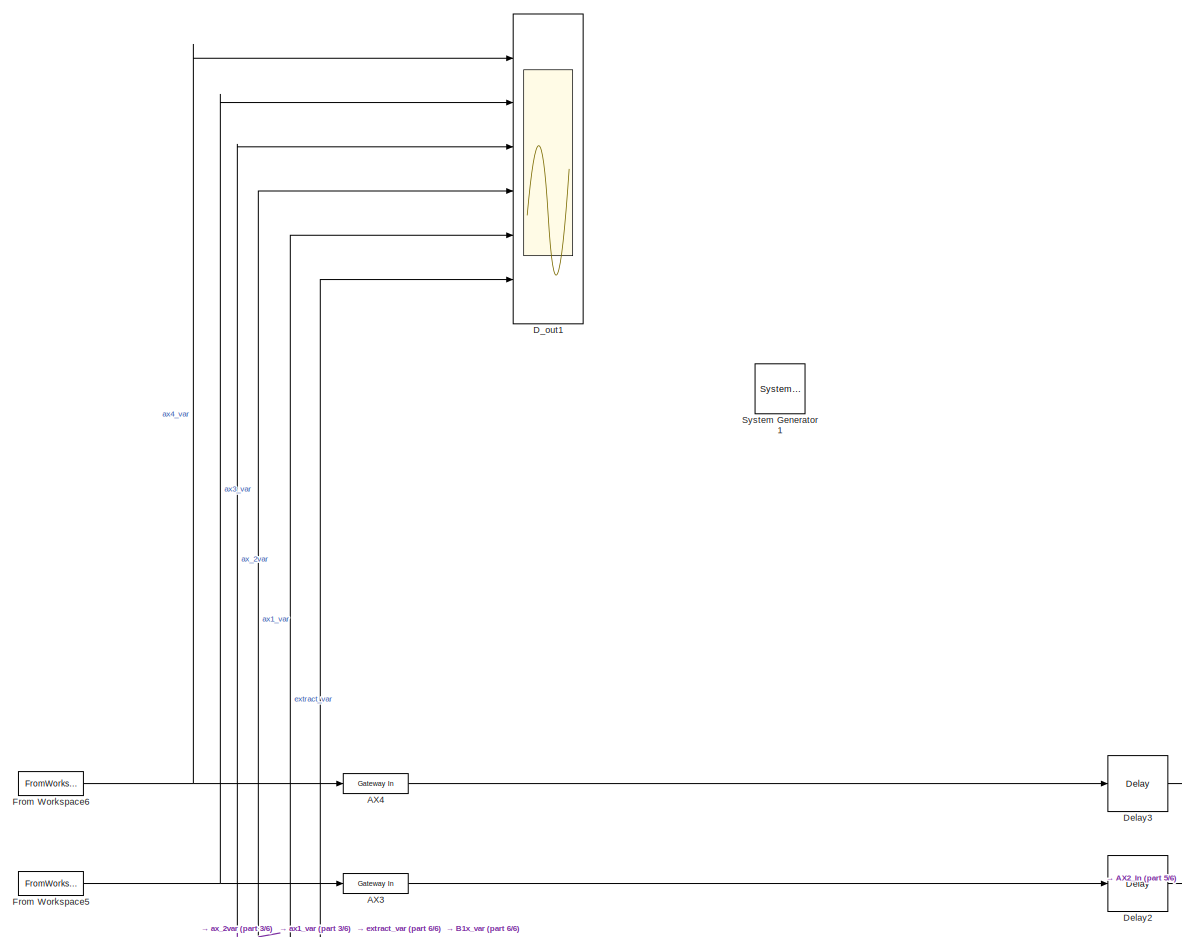
[diagram: root canvas - part 1/6, top left region]
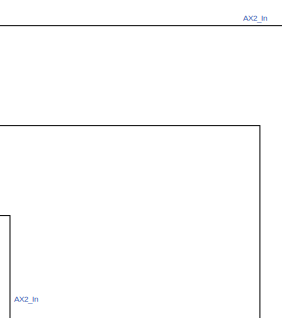
[diagram: root canvas - part 2/6, central region]
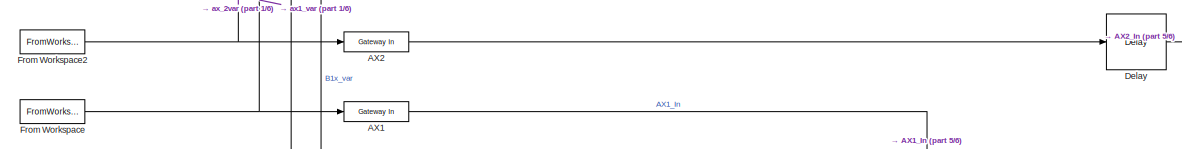
[diagram: root canvas - part 3/6, middle left region]
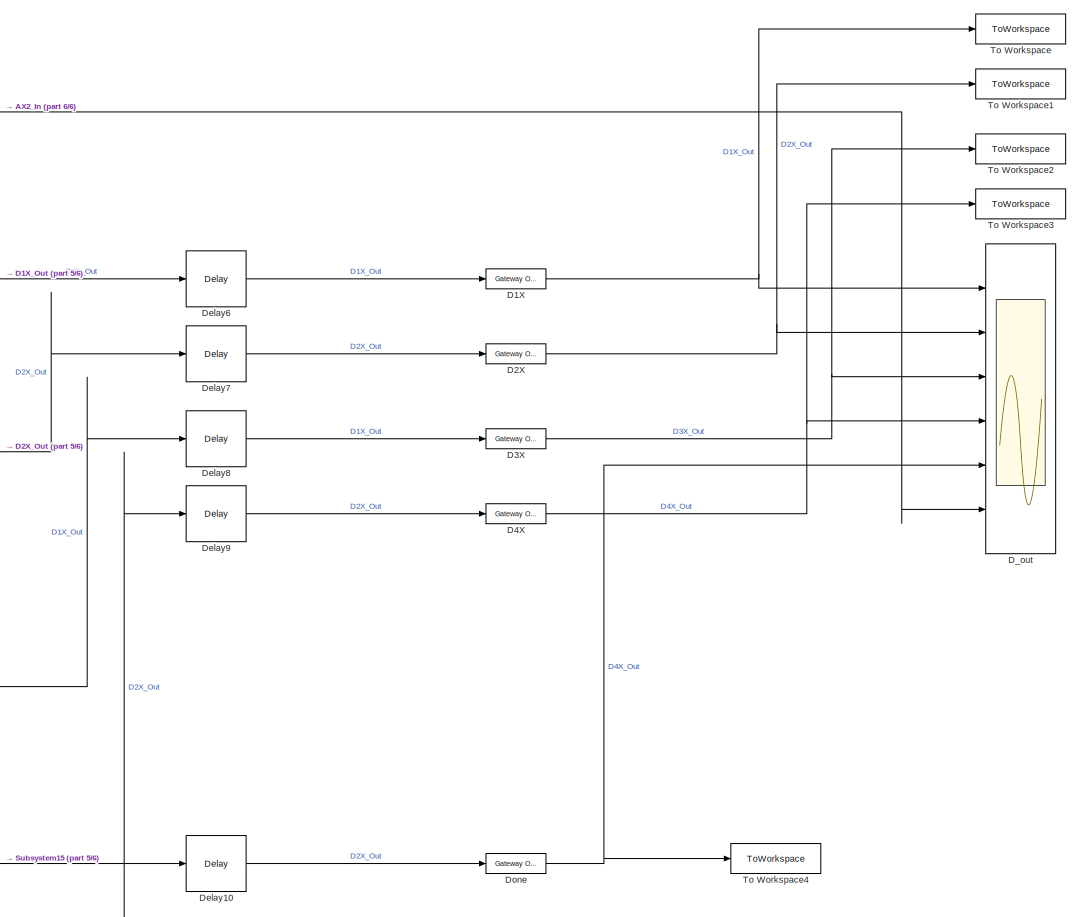
[diagram: root canvas - part 4/6, bottom right region]
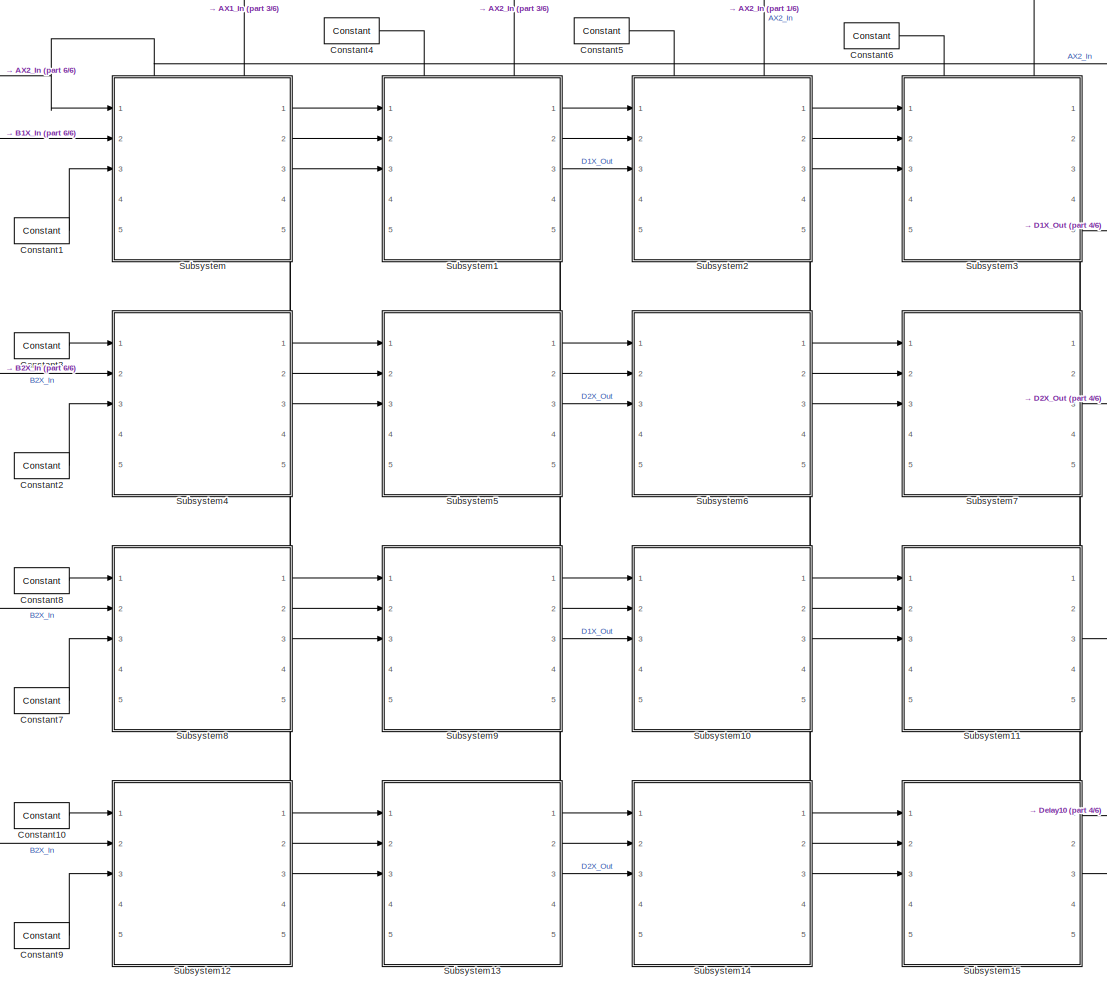
[diagram: root canvas - part 5/6, bottom center region]
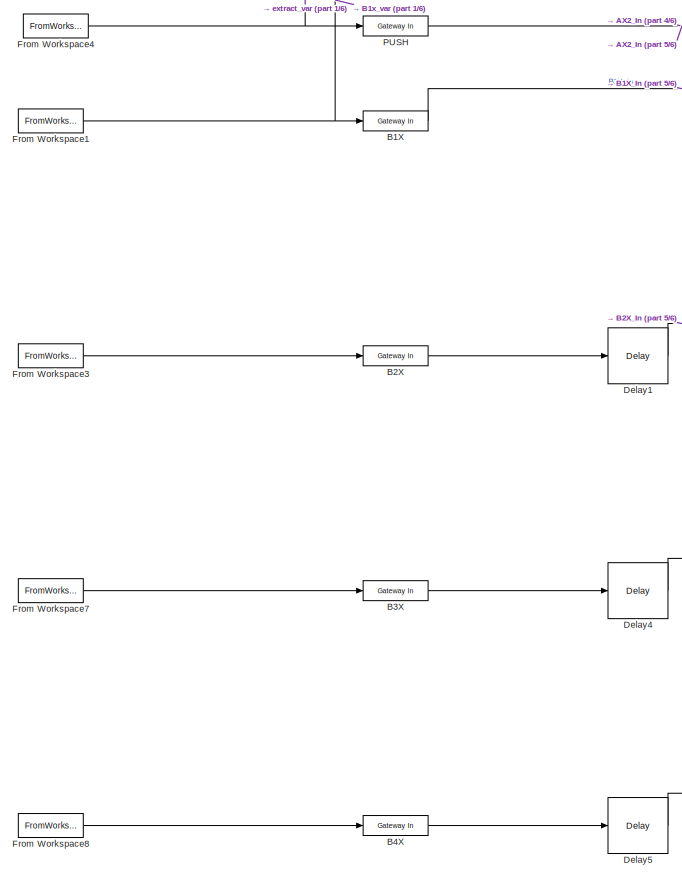
[diagram: root canvas - part 6/6, bottom left region]
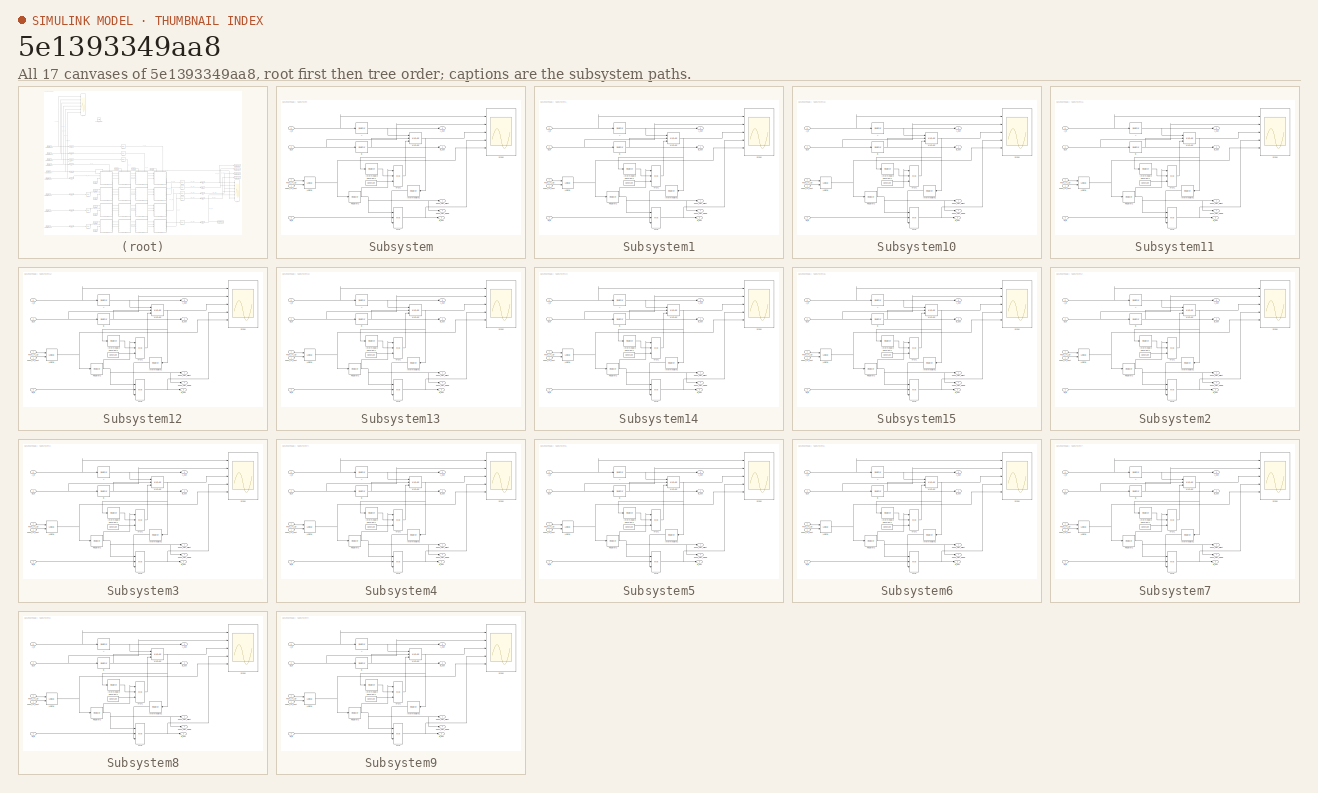
[diagram: thumbnail index - all 17 canvases of the model, root first then tree order]
MODEL slx_5e1393349aa8
KIND model
CONFIG AbsTol = auto
CONFIG EnableMultiTasking = off
CONFIG FixedStep = auto
CONFIG MaxStep = auto
CONFIG MinStep = auto
CONFIG RelTol = 1e-3
CONFIG SampleTimeConstraint = Unconstrained
CONFIG SolverName = VariableStepAuto
CONFIG StartTime = 0.0
CONFIG StopTime = 32
BLOCK [Reference]  System Generator1  REF=xbsIndex_r4/ System Generator
  AttributesFormatString = System\nGenerator
  Ports = []
  SourceBlock = xbsIndex_r4/ System Generator
  SourceType = Xilinx System Generator Block
  Tag = genX
  UserDataPersistent = on
BLOCK [Reference] AX1  REF=hdlBasic/Gateway In
  Ports = [1, 1]
  SourceBlock = hdlBasic/Gateway In
  SourceType = Gateway In Block
BLOCK [Reference] AX2  REF=hdlBasic/Gateway In
  Ports = [1, 1]
  SourceBlock = hdlBasic/Gateway In
  SourceType = Gateway In Block
BLOCK [Reference] AX3  REF=hdlBasic/Gateway In
  Ports = [1, 1]
  SourceBlock = hdlBasic/Gateway In
  SourceType = Gateway In Block
BLOCK [Reference] AX4  REF=hdlBasic/Gateway In
  Ports = [1, 1]
  SourceBlock = hdlBasic/Gateway In
  SourceType = Gateway In Block
BLOCK [Reference] B1X  REF=hdlBasic/Gateway In
  Ports = [1, 1]
  SourceBlock = hdlBasic/Gateway In
  SourceType = Gateway In Block
BLOCK [Reference] B2X  REF=hdlBasic/Gateway In
  Ports = [1, 1]
  SourceBlock = hdlBasic/Gateway In
  SourceType = Gateway In Block
BLOCK [Reference] B3X  REF=hdlBasic/Gateway In
  Ports = [1, 1]
  SourceBlock = hdlBasic/Gateway In
  SourceType = Gateway In Block
BLOCK [Reference] B4X  REF=hdlBasic/Gateway In
  Ports = [1, 1]
  SourceBlock = hdlBasic/Gateway In
  SourceType = Gateway In Block
BLOCK [Reference] Constant1  REF=hdlBasic/Constant
  Ports = [0, 1]
  SourceBlock = hdlBasic/Constant
  SourceType = Constant Block Block
BLOCK [Reference] Constant10  REF=hdlBasic/Constant
  Ports = [0, 1]
  SourceBlock = hdlBasic/Constant
  SourceType = Constant Block Block
BLOCK [Reference] Constant2  REF=hdlBasic/Constant
  Ports = [0, 1]
  SourceBlock = hdlBasic/Constant
  SourceType = Constant Block Block
BLOCK [Reference] Constant3  REF=hdlBasic/Constant
  Ports = [0, 1]
  SourceBlock = hdlBasic/Constant
  SourceType = Constant Block Block
BLOCK [Reference] Constant4  REF=hdlBasic/Constant
  Ports = [0, 1]
  SourceBlock = hdlBasic/Constant
  SourceType = Constant Block Block
BLOCK [Reference] Constant5  REF=hdlBasic/Constant
  Ports = [0, 1]
  SourceBlock = hdlBasic/Constant
  SourceType = Constant Block Block
BLOCK [Reference] Constant6  REF=hdlBasic/Constant
  Ports = [0, 1]
  SourceBlock = hdlBasic/Constant
  SourceType = Constant Block Block
BLOCK [Reference] Constant7  REF=hdlBasic/Constant
  Ports = [0, 1]
  SourceBlock = hdlBasic/Constant
  SourceType = Constant Block Block
BLOCK [Reference] Constant8  REF=hdlBasic/Constant
  Ports = [0, 1]
  SourceBlock = hdlBasic/Constant
  SourceType = Constant Block Block
BLOCK [Reference] Constant9  REF=hdlBasic/Constant
  Ports = [0, 1]
  SourceBlock = hdlBasic/Constant
  SourceType = Constant Block Block
BLOCK [Reference] D1X  REF=hdlBasic/Gateway Out
  Ports = [1, 1]
  SourceBlock = hdlBasic/Gateway Out
  SourceType = Gateway Out Block
BLOCK [Reference] D2X  REF=hdlBasic/Gateway Out
  Ports = [1, 1]
  SourceBlock = hdlBasic/Gateway Out
  SourceType = Gateway Out Block
BLOCK [Reference] D3X  REF=hdlBasic/Gateway Out
  Ports = [1, 1]
  SourceBlock = hdlBasic/Gateway Out
  SourceType = Gateway Out Block
BLOCK [Reference] D4X  REF=hdlBasic/Gateway Out
  Ports = [1, 1]
  SourceBlock = hdlBasic/Gateway Out
  SourceType = Gateway Out Block
BLOCK [Scope] D_out
  Floating = off
  NumInputPorts = 6
  Ports = [6]
  ScopeSpecificationString = Simulink.scopes.TimeScopeBlockCfg('CurrentConfiguration', extmgr.ConfigurationSet(extmgr.Configuration('Core','General UI',true),extmgr.Configuration('Core','Source UI',true),extmgr.Configuration('Sources','WiredSimulink',true),extmgr.Configuration('Visuals','Time Domain',true,'PlotType','Stem','SerializedDisplays',{struct('MinYLimReal','-27.625','MaxYLimReal','248.625','YLabelReal','','MinYLimMag...<+6419ch>
BLOCK [Scope] D_out1
  Floating = off
  NumInputPorts = 6
  Ports = [6]
  ScopeSpecificationString = Simulink.scopes.TimeScopeBlockCfg('CurrentConfiguration', extmgr.ConfigurationSet(extmgr.Configuration('Core','General UI',true),extmgr.Configuration('Core','Source UI',true),extmgr.Configuration('Sources','WiredSimulink',true,'DataLoggingVariableName','ScopeData1'),extmgr.Configuration('Visuals','Time Domain',true,'PlotType','Stairs','SerializedDisplays',{struct('MinYLimReal','-1.375','MaxYLimRea...<+6426ch>
BLOCK [Reference] Delay  REF=hdlBasic/Delay
  Ports = [1, 1]
  SourceBlock = hdlBasic/Delay
  SourceType = Delay Block
BLOCK [Reference] Delay1  REF=hdlBasic/Delay
  Ports = [1, 1]
  SourceBlock = hdlBasic/Delay
  SourceType = Delay Block
BLOCK [Reference] Delay10  REF=hdlBasic/Delay
  Ports = [1, 1]
  SourceBlock = hdlBasic/Delay
  SourceType = Delay Block
BLOCK [Reference] Delay2  REF=hdlBasic/Delay
  Ports = [1, 1]
  SourceBlock = hdlBasic/Delay
  SourceType = Delay Block
BLOCK [Reference] Delay3  REF=hdlBasic/Delay
  Ports = [1, 1]
  SourceBlock = hdlBasic/Delay
  SourceType = Delay Block
BLOCK [Reference] Delay4  REF=hdlBasic/Delay
  Ports = [1, 1]
  SourceBlock = hdlBasic/Delay
  SourceType = Delay Block
BLOCK [Reference] Delay5  REF=hdlBasic/Delay
  Ports = [1, 1]
  SourceBlock = hdlBasic/Delay
  SourceType = Delay Block
BLOCK [Reference] Delay6  REF=hdlBasic/Delay
  Ports = [1, 1]
  SourceBlock = hdlBasic/Delay
  SourceType = Delay Block
BLOCK [Reference] Delay7  REF=hdlBasic/Delay
  Ports = [1, 1]
  SourceBlock = hdlBasic/Delay
  SourceType = Delay Block
BLOCK [Reference] Delay8  REF=hdlBasic/Delay
  Ports = [1, 1]
  SourceBlock = hdlBasic/Delay
  SourceType = Delay Block
BLOCK [Reference] Delay9  REF=hdlBasic/Delay
  Ports = [1, 1]
  SourceBlock = hdlBasic/Delay
  SourceType = Delay Block
BLOCK [Reference] Done  REF=hdlBasic/Gateway Out
  Ports = [1, 1]
  SourceBlock = hdlBasic/Gateway Out
  SourceType = Gateway Out Block
BLOCK [FromWorkspace] From Workspace
  Interpolate = off
  OutputAfterFinalValue = Setting to zero
  VariableName = aX1_var
BLOCK [FromWorkspace] From Workspace1
  Interpolate = off
  OutputAfterFinalValue = Setting to zero
  VariableName = b1X_var
BLOCK [FromWorkspace] From Workspace2
  Interpolate = off
  OutputAfterFinalValue = Setting to zero
  VariableName = aX2_var
BLOCK [FromWorkspace] From Workspace3
  Interpolate = off
  OutputAfterFinalValue = Setting to zero
  VariableName = b2X_var
BLOCK [FromWorkspace] From Workspace4
  Interpolate = off
  OutputAfterFinalValue = Setting to zero
  VariableName = Extract_var
BLOCK [FromWorkspace] From Workspace5
  Interpolate = off
  OutputAfterFinalValue = Setting to zero
  VariableName = aX3_var
BLOCK [FromWorkspace] From Workspace6
  Interpolate = off
  OutputAfterFinalValue = Setting to zero
  VariableName = aX4_var
BLOCK [FromWorkspace] From Workspace7
  Interpolate = off
  OutputAfterFinalValue = Setting to zero
  VariableName = b3X_var
BLOCK [FromWorkspace] From Workspace8
  Interpolate = off
  OutputAfterFinalValue = Setting to zero
  VariableName = b4X_var
BLOCK [Reference] PUSH  REF=hdlBasic/Gateway In
  Ports = [1, 1]
  SourceBlock = hdlBasic/Gateway In
  SourceType = Gateway In Block
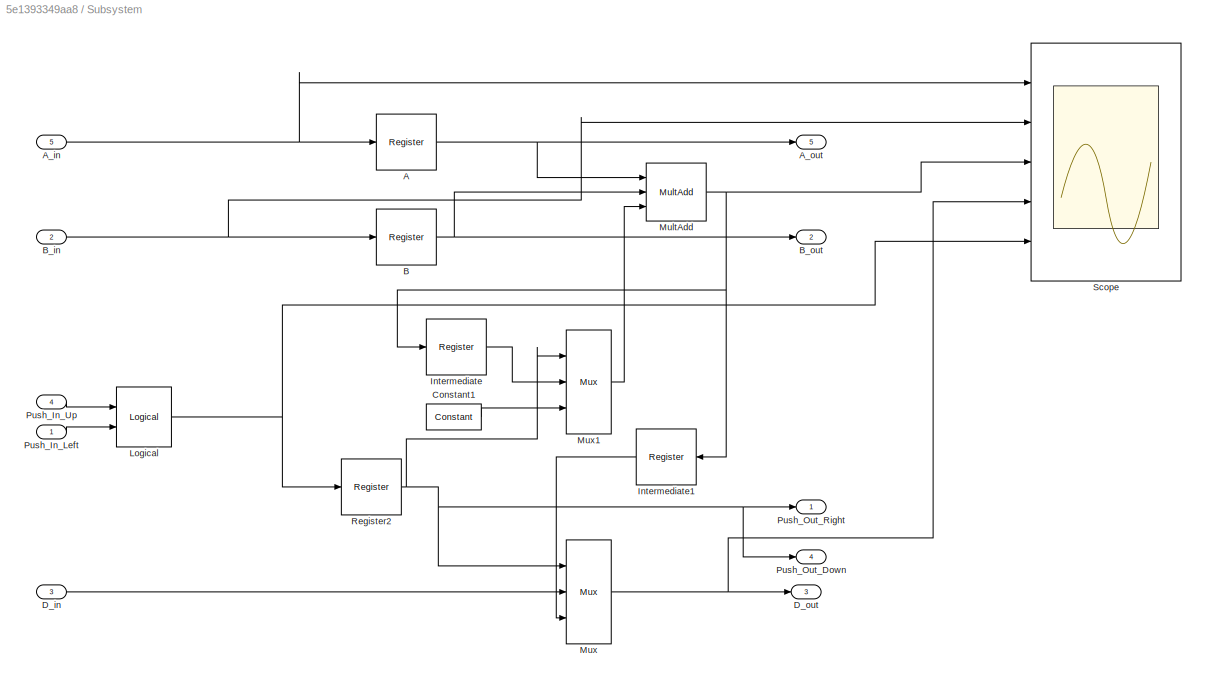
BLOCK [SubSystem] Subsystem
  PortSchema = {"entries":[{"content":{"sides":[{"content":{"connectorIds":["In1","In2","In3"]},"type":"ConnectorPlacement.EquallySpacedRectSide","uuid":"8ff87642-4ab4-4993-8c2d-3e2a0b442edb"},{"content":{"connectorIds":["Out1","Out2","Out3"],"side":"RIGHT"},"type":"ConnectorPlacement.EquallySpacedRectSide","uuid":"3e5e616f-4833-4873-80b3-d7c022d50595"},{"content":{"connectorIds":["In4","In5"],"side":"TOP"},"typ...<+434ch>  <repeated x16 — deduplicated; at blocks: Subsystem, Subsystem1, Subsystem10, Subsystem11, Subsystem12, Subsystem13, Subsystem14, Subsystem15, Subsystem2, Subsystem3, Subsystem4, Subsystem5, Subsystem6, Subsystem7, Subsystem8, Subsystem9>
  Ports = [5, 5]
  RequestExecContextInheritance = off
BLOCK [Reference] Subsystem/A  REF=hdlBasic/Register
  Ports = [1, 1]
  SourceBlock = hdlBasic/Register
  SourceType = Register Block
BLOCK [Inport] Subsystem/A_in
  Port = 5
BLOCK [Outport] Subsystem/A_out
  Port = 5
BLOCK [Reference] Subsystem/B  REF=hdlBasic/Register
  Ports = [1, 1]
  SourceBlock = hdlBasic/Register
  SourceType = Register Block
BLOCK [Inport] Subsystem/B_in
  Port = 2
BLOCK [Outport] Subsystem/B_out
  Port = 2
BLOCK [Reference] Subsystem/Constant1  REF=hdlBasic/Constant
  Ports = [0, 1]
  SourceBlock = hdlBasic/Constant
  SourceType = Constant Block Block
BLOCK [Inport] Subsystem/D_in
  Port = 3
BLOCK [Outport] Subsystem/D_out
  Port = 3
BLOCK [Reference] Subsystem/Intermediate  REF=hdlBasic/Register
  Ports = [1, 1]
  SourceBlock = hdlBasic/Register
  SourceType = Register Block
BLOCK [Reference] Subsystem/Intermediate1  REF=hdlBasic/Register
  Ports = [1, 1]
  SourceBlock = hdlBasic/Register
  SourceType = Register Block
BLOCK [Reference] Subsystem/Logical  REF=hdlBasic/Logical
  Ports = [2, 1]
  SourceBlock = hdlBasic/Logical
  SourceType = Logical Block Block
BLOCK [Reference] Subsystem/MultAdd  REF=hdlBasic/MultAdd
  Ports = [3, 1]
  SourceBlock = hdlBasic/MultAdd
  SourceType = Multiply Adder Block
BLOCK [Reference] Subsystem/Mux  REF=hdlBasic/Mux
  Ports = [3, 1]
  SourceBlock = hdlBasic/Mux
  SourceType = Bus Multiplexer Block
BLOCK [Reference] Subsystem/Mux1  REF=hdlBasic/Mux
  Ports = [3, 1]
  SourceBlock = hdlBasic/Mux
  SourceType = Bus Multiplexer Block
BLOCK [Inport] Subsystem/Push_In_Left
BLOCK [Inport] Subsystem/Push_In_Up
  Port = 4
BLOCK [Outport] Subsystem/Push_Out_Down
  Port = 4
BLOCK [Outport] Subsystem/Push_Out_Right
BLOCK [Reference] Subsystem/Register2  REF=hdlBasic/Register
  Ports = [1, 1]
  SourceBlock = hdlBasic/Register
  SourceType = Register Block
BLOCK [Scope] Subsystem/Scope
  Floating = off
  NumInputPorts = 5
  Ports = [5]
  ScopeSpecificationString = Simulink.scopes.TimeScopeBlockCfg('CurrentConfiguration', extmgr.ConfigurationSet(extmgr.Configuration('Core','General UI',true),extmgr.Configuration('Core','Source UI',true),extmgr.Configuration('Sources','WiredSimulink',true,'DataLoggingVariableName','ScopeData1'),extmgr.Configuration('Visuals','Time Domain',true,'SerializedDisplays',{struct('MinYLimReal','-1.25','MaxYLimReal','11.25','YLabelRea...<+6536ch>
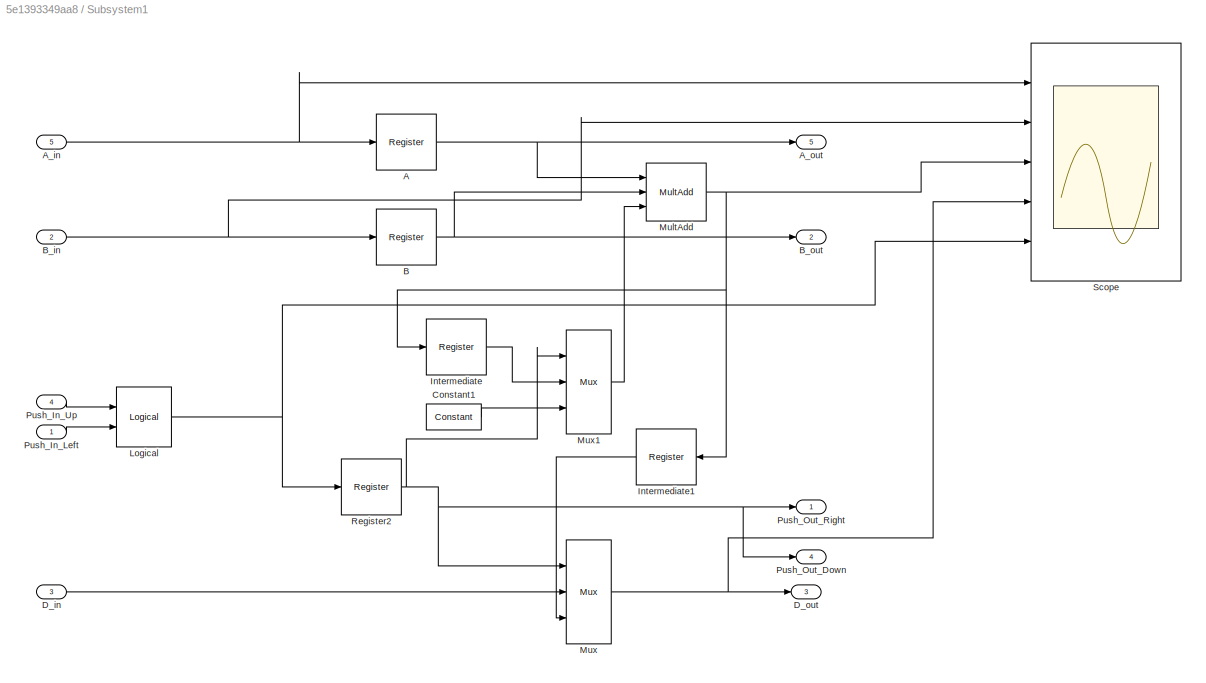
BLOCK [SubSystem] Subsystem1
  Ports = [5, 5]
  RequestExecContextInheritance = off
BLOCK [Reference] Subsystem1/A  REF=hdlBasic/Register
  Ports = [1, 1]
  SourceBlock = hdlBasic/Register
  SourceType = Register Block
BLOCK [Inport] Subsystem1/A_in
  Port = 5
BLOCK [Outport] Subsystem1/A_out
  Port = 5
BLOCK [Reference] Subsystem1/B  REF=hdlBasic/Register
  Ports = [1, 1]
  SourceBlock = hdlBasic/Register
  SourceType = Register Block
BLOCK [Inport] Subsystem1/B_in
  Port = 2
BLOCK [Outport] Subsystem1/B_out
  Port = 2
BLOCK [Reference] Subsystem1/Constant1  REF=hdlBasic/Constant
  Ports = [0, 1]
  SourceBlock = hdlBasic/Constant
  SourceType = Constant Block Block
BLOCK [Inport] Subsystem1/D_in
  Port = 3
BLOCK [Outport] Subsystem1/D_out
  Port = 3
BLOCK [Reference] Subsystem1/Intermediate  REF=hdlBasic/Register
  Ports = [1, 1]
  SourceBlock = hdlBasic/Register
  SourceType = Register Block
BLOCK [Reference] Subsystem1/Intermediate1  REF=hdlBasic/Register
  Ports = [1, 1]
  SourceBlock = hdlBasic/Register
  SourceType = Register Block
BLOCK [Reference] Subsystem1/Logical  REF=hdlBasic/Logical
  Ports = [2, 1]
  SourceBlock = hdlBasic/Logical
  SourceType = Logical Block Block
BLOCK [Reference] Subsystem1/MultAdd  REF=hdlBasic/MultAdd
  Ports = [3, 1]
  SourceBlock = hdlBasic/MultAdd
  SourceType = Multiply Adder Block
BLOCK [Reference] Subsystem1/Mux  REF=hdlBasic/Mux
  Ports = [3, 1]
  SourceBlock = hdlBasic/Mux
  SourceType = Bus Multiplexer Block
BLOCK [Reference] Subsystem1/Mux1  REF=hdlBasic/Mux
  Ports = [3, 1]
  SourceBlock = hdlBasic/Mux
  SourceType = Bus Multiplexer Block
BLOCK [Inport] Subsystem1/Push_In_Left
BLOCK [Inport] Subsystem1/Push_In_Up
  Port = 4
BLOCK [Outport] Subsystem1/Push_Out_Down
  Port = 4
BLOCK [Outport] Subsystem1/Push_Out_Right
BLOCK [Reference] Subsystem1/Register2  REF=hdlBasic/Register
  Ports = [1, 1]
  SourceBlock = hdlBasic/Register
  SourceType = Register Block
BLOCK [Scope] Subsystem1/Scope
  Floating = off
  NumInputPorts = 5
  Ports = [5]
  ScopeSpecificationString = Simulink.scopes.TimeScopeBlockCfg('CurrentConfiguration', extmgr.ConfigurationSet(extmgr.Configuration('Core','General UI',true),extmgr.Configuration('Core','Source UI',true),extmgr.Configuration('Sources','WiredSimulink',true,'DataLoggingVariableName','ScopeData1'),extmgr.Configuration('Visuals','Time Domain',true,'SerializedDisplays',{struct('MinYLimReal','-1.25','MaxYLimReal','11.25','YLabelRea...<+6535ch>  <repeated x15 — deduplicated; at blocks: Scope>
BLOCK [SubSystem] Subsystem10
  Ports = [5, 5]
  RequestExecContextInheritance = off
BLOCK [Reference] Subsystem10/A  REF=hdlBasic/Register
  Ports = [1, 1]
  SourceBlock = hdlBasic/Register
  SourceType = Register Block
BLOCK [Inport] Subsystem10/A_in
  Port = 5
BLOCK [Outport] Subsystem10/A_out
  Port = 5
BLOCK [Reference] Subsystem10/B  REF=hdlBasic/Register
  Ports = [1, 1]
  SourceBlock = hdlBasic/Register
  SourceType = Register Block
BLOCK [Inport] Subsystem10/B_in
  Port = 2
BLOCK [Outport] Subsystem10/B_out
  Port = 2
BLOCK [Reference] Subsystem10/Constant1  REF=hdlBasic/Constant
  Ports = [0, 1]
  SourceBlock = hdlBasic/Constant
  SourceType = Constant Block Block
BLOCK [Inport] Subsystem10/D_in
  Port = 3
BLOCK [Outport] Subsystem10/D_out
  Port = 3
BLOCK [Reference] Subsystem10/Intermediate  REF=hdlBasic/Register
  Ports = [1, 1]
  SourceBlock = hdlBasic/Register
  SourceType = Register Block
BLOCK [Reference] Subsystem10/Intermediate1  REF=hdlBasic/Register
  Ports = [1, 1]
  SourceBlock = hdlBasic/Register
  SourceType = Register Block
BLOCK [Reference] Subsystem10/Logical  REF=hdlBasic/Logical
  Ports = [2, 1]
  SourceBlock = hdlBasic/Logical
  SourceType = Logical Block Block
BLOCK [Reference] Subsystem10/MultAdd  REF=hdlBasic/MultAdd
  Ports = [3, 1]
  SourceBlock = hdlBasic/MultAdd
  SourceType = Multiply Adder Block
BLOCK [Reference] Subsystem10/Mux  REF=hdlBasic/Mux
  Ports = [3, 1]
  SourceBlock = hdlBasic/Mux
  SourceType = Bus Multiplexer Block
BLOCK [Reference] Subsystem10/Mux1  REF=hdlBasic/Mux
  Ports = [3, 1]
  SourceBlock = hdlBasic/Mux
  SourceType = Bus Multiplexer Block
BLOCK [Inport] Subsystem10/Push_In_Left
BLOCK [Inport] Subsystem10/Push_In_Up
  Port = 4
BLOCK [Outport] Subsystem10/Push_Out_Down
  Port = 4
BLOCK [Outport] Subsystem10/Push_Out_Right
BLOCK [Reference] Subsystem10/Register2  REF=hdlBasic/Register
  Ports = [1, 1]
  SourceBlock = hdlBasic/Register
  SourceType = Register Block
BLOCK [Scope] Subsystem10/Scope
  Floating = off
  NumInputPorts = 5
  Ports = [5]
BLOCK [SubSystem] Subsystem11
  Ports = [5, 5]
  RequestExecContextInheritance = off
BLOCK [Reference] Subsystem11/A  REF=hdlBasic/Register
  Ports = [1, 1]
  SourceBlock = hdlBasic/Register
  SourceType = Register Block
BLOCK [Inport] Subsystem11/A_in
  Port = 5
BLOCK [Outport] Subsystem11/A_out
  Port = 5
BLOCK [Reference] Subsystem11/B  REF=hdlBasic/Register
  Ports = [1, 1]
  SourceBlock = hdlBasic/Register
  SourceType = Register Block
BLOCK [Inport] Subsystem11/B_in
  Port = 2
BLOCK [Outport] Subsystem11/B_out
  Port = 2
BLOCK [Reference] Subsystem11/Constant1  REF=hdlBasic/Constant
  Ports = [0, 1]
  SourceBlock = hdlBasic/Constant
  SourceType = Constant Block Block
BLOCK [Inport] Subsystem11/D_in
  Port = 3
BLOCK [Outport] Subsystem11/D_out
  Port = 3
BLOCK [Reference] Subsystem11/Intermediate  REF=hdlBasic/Register
  Ports = [1, 1]
  SourceBlock = hdlBasic/Register
  SourceType = Register Block
BLOCK [Reference] Subsystem11/Intermediate1  REF=hdlBasic/Register
  Ports = [1, 1]
  SourceBlock = hdlBasic/Register
  SourceType = Register Block
BLOCK [Reference] Subsystem11/Logical  REF=hdlBasic/Logical
  Ports = [2, 1]
  SourceBlock = hdlBasic/Logical
  SourceType = Logical Block Block
BLOCK [Reference] Subsystem11/MultAdd  REF=hdlBasic/MultAdd
  Ports = [3, 1]
  SourceBlock = hdlBasic/MultAdd
  SourceType = Multiply Adder Block
BLOCK [Reference] Subsystem11/Mux  REF=hdlBasic/Mux
  Ports = [3, 1]
  SourceBlock = hdlBasic/Mux
  SourceType = Bus Multiplexer Block
BLOCK [Reference] Subsystem11/Mux1  REF=hdlBasic/Mux
  Ports = [3, 1]
  SourceBlock = hdlBasic/Mux
  SourceType = Bus Multiplexer Block
BLOCK [Inport] Subsystem11/Push_In_Left
BLOCK [Inport] Subsystem11/Push_In_Up
  Port = 4
BLOCK [Outport] Subsystem11/Push_Out_Down
  Port = 4
BLOCK [Outport] Subsystem11/Push_Out_Right
BLOCK [Reference] Subsystem11/Register2  REF=hdlBasic/Register
  Ports = [1, 1]
  SourceBlock = hdlBasic/Register
  SourceType = Register Block
BLOCK [Scope] Subsystem11/Scope
  Floating = off
  NumInputPorts = 5
  Ports = [5]
BLOCK [SubSystem] Subsystem12
  Ports = [5, 5]
  RequestExecContextInheritance = off
BLOCK [Reference] Subsystem12/A  REF=hdlBasic/Register
  Ports = [1, 1]
  SourceBlock = hdlBasic/Register
  SourceType = Register Block
BLOCK [Inport] Subsystem12/A_in
  Port = 5
BLOCK [Outport] Subsystem12/A_out
  Port = 5
BLOCK [Reference] Subsystem12/B  REF=hdlBasic/Register
  Ports = [1, 1]
  SourceBlock = hdlBasic/Register
  SourceType = Register Block
BLOCK [Inport] Subsystem12/B_in
  Port = 2
BLOCK [Outport] Subsystem12/B_out
  Port = 2
BLOCK [Reference] Subsystem12/Constant1  REF=hdlBasic/Constant
  Ports = [0, 1]
  SourceBlock = hdlBasic/Constant
  SourceType = Constant Block Block
BLOCK [Inport] Subsystem12/D_in
  Port = 3
BLOCK [Outport] Subsystem12/D_out
  Port = 3
BLOCK [Reference] Subsystem12/Intermediate  REF=hdlBasic/Register
  Ports = [1, 1]
  SourceBlock = hdlBasic/Register
  SourceType = Register Block
BLOCK [Reference] Subsystem12/Intermediate1  REF=hdlBasic/Register
  Ports = [1, 1]
  SourceBlock = hdlBasic/Register
  SourceType = Register Block
BLOCK [Reference] Subsystem12/Logical  REF=hdlBasic/Logical
  Ports = [2, 1]
  SourceBlock = hdlBasic/Logical
  SourceType = Logical Block Block
BLOCK [Reference] Subsystem12/MultAdd  REF=hdlBasic/MultAdd
  Ports = [3, 1]
  SourceBlock = hdlBasic/MultAdd
  SourceType = Multiply Adder Block
BLOCK [Reference] Subsystem12/Mux  REF=hdlBasic/Mux
  Ports = [3, 1]
  SourceBlock = hdlBasic/Mux
  SourceType = Bus Multiplexer Block
BLOCK [Reference] Subsystem12/Mux1  REF=hdlBasic/Mux
  Ports = [3, 1]
  SourceBlock = hdlBasic/Mux
  SourceType = Bus Multiplexer Block
BLOCK [Inport] Subsystem12/Push_In_Left
BLOCK [Inport] Subsystem12/Push_In_Up
  Port = 4
BLOCK [Outport] Subsystem12/Push_Out_Down
  Port = 4
BLOCK [Outport] Subsystem12/Push_Out_Right
BLOCK [Reference] Subsystem12/Register2  REF=hdlBasic/Register
  Ports = [1, 1]
  SourceBlock = hdlBasic/Register
  SourceType = Register Block
BLOCK [Scope] Subsystem12/Scope
  Floating = off
  NumInputPorts = 5
  Ports = [5]
BLOCK [SubSystem] Subsystem13
  Ports = [5, 5]
  RequestExecContextInheritance = off
BLOCK [Reference] Subsystem13/A  REF=hdlBasic/Register
  Ports = [1, 1]
  SourceBlock = hdlBasic/Register
  SourceType = Register Block
BLOCK [Inport] Subsystem13/A_in
  Port = 5
BLOCK [Outport] Subsystem13/A_out
  Port = 5
BLOCK [Reference] Subsystem13/B  REF=hdlBasic/Register
  Ports = [1, 1]
  SourceBlock = hdlBasic/Register
  SourceType = Register Block
BLOCK [Inport] Subsystem13/B_in
  Port = 2
BLOCK [Outport] Subsystem13/B_out
  Port = 2
BLOCK [Reference] Subsystem13/Constant1  REF=hdlBasic/Constant
  Ports = [0, 1]
  SourceBlock = hdlBasic/Constant
  SourceType = Constant Block Block
BLOCK [Inport] Subsystem13/D_in
  Port = 3
BLOCK [Outport] Subsystem13/D_out
  Port = 3
BLOCK [Reference] Subsystem13/Intermediate  REF=hdlBasic/Register
  Ports = [1, 1]
  SourceBlock = hdlBasic/Register
  SourceType = Register Block
BLOCK [Reference] Subsystem13/Intermediate1  REF=hdlBasic/Register
  Ports = [1, 1]
  SourceBlock = hdlBasic/Register
  SourceType = Register Block
BLOCK [Reference] Subsystem13/Logical  REF=hdlBasic/Logical
  Ports = [2, 1]
  SourceBlock = hdlBasic/Logical
  SourceType = Logical Block Block
BLOCK [Reference] Subsystem13/MultAdd  REF=hdlBasic/MultAdd
  Ports = [3, 1]
  SourceBlock = hdlBasic/MultAdd
  SourceType = Multiply Adder Block
BLOCK [Reference] Subsystem13/Mux  REF=hdlBasic/Mux
  Ports = [3, 1]
  SourceBlock = hdlBasic/Mux
  SourceType = Bus Multiplexer Block
BLOCK [Reference] Subsystem13/Mux1  REF=hdlBasic/Mux
  Ports = [3, 1]
  SourceBlock = hdlBasic/Mux
  SourceType = Bus Multiplexer Block
BLOCK [Inport] Subsystem13/Push_In_Left
BLOCK [Inport] Subsystem13/Push_In_Up
  Port = 4
BLOCK [Outport] Subsystem13/Push_Out_Down
  Port = 4
BLOCK [Outport] Subsystem13/Push_Out_Right
BLOCK [Reference] Subsystem13/Register2  REF=hdlBasic/Register
  Ports = [1, 1]
  SourceBlock = hdlBasic/Register
  SourceType = Register Block
BLOCK [Scope] Subsystem13/Scope
  Floating = off
  NumInputPorts = 5
  Ports = [5]
BLOCK [SubSystem] Subsystem14
  Ports = [5, 5]
  RequestExecContextInheritance = off
BLOCK [Reference] Subsystem14/A  REF=hdlBasic/Register
  Ports = [1, 1]
  SourceBlock = hdlBasic/Register
  SourceType = Register Block
BLOCK [Inport] Subsystem14/A_in
  Port = 5
BLOCK [Outport] Subsystem14/A_out
  Port = 5
BLOCK [Reference] Subsystem14/B  REF=hdlBasic/Register
  Ports = [1, 1]
  SourceBlock = hdlBasic/Register
  SourceType = Register Block
BLOCK [Inport] Subsystem14/B_in
  Port = 2
BLOCK [Outport] Subsystem14/B_out
  Port = 2
BLOCK [Reference] Subsystem14/Constant1  REF=hdlBasic/Constant
  Ports = [0, 1]
  SourceBlock = hdlBasic/Constant
  SourceType = Constant Block Block
BLOCK [Inport] Subsystem14/D_in
  Port = 3
BLOCK [Outport] Subsystem14/D_out
  Port = 3
BLOCK [Reference] Subsystem14/Intermediate  REF=hdlBasic/Register
  Ports = [1, 1]
  SourceBlock = hdlBasic/Register
  SourceType = Register Block
BLOCK [Reference] Subsystem14/Intermediate1  REF=hdlBasic/Register
  Ports = [1, 1]
  SourceBlock = hdlBasic/Register
  SourceType = Register Block
BLOCK [Reference] Subsystem14/Logical  REF=hdlBasic/Logical
  Ports = [2, 1]
  SourceBlock = hdlBasic/Logical
  SourceType = Logical Block Block
BLOCK [Reference] Subsystem14/MultAdd  REF=hdlBasic/MultAdd
  Ports = [3, 1]
  SourceBlock = hdlBasic/MultAdd
  SourceType = Multiply Adder Block
BLOCK [Reference] Subsystem14/Mux  REF=hdlBasic/Mux
  Ports = [3, 1]
  SourceBlock = hdlBasic/Mux
  SourceType = Bus Multiplexer Block
BLOCK [Reference] Subsystem14/Mux1  REF=hdlBasic/Mux
  Ports = [3, 1]
  SourceBlock = hdlBasic/Mux
  SourceType = Bus Multiplexer Block
BLOCK [Inport] Subsystem14/Push_In_Left
BLOCK [Inport] Subsystem14/Push_In_Up
  Port = 4
BLOCK [Outport] Subsystem14/Push_Out_Down
  Port = 4
BLOCK [Outport] Subsystem14/Push_Out_Right
BLOCK [Reference] Subsystem14/Register2  REF=hdlBasic/Register
  Ports = [1, 1]
  SourceBlock = hdlBasic/Register
  SourceType = Register Block
BLOCK [Scope] Subsystem14/Scope
  Floating = off
  NumInputPorts = 5
  Ports = [5]
BLOCK [SubSystem] Subsystem15
  Ports = [5, 5]
  RequestExecContextInheritance = off
BLOCK [Reference] Subsystem15/A  REF=hdlBasic/Register
  Ports = [1, 1]
  SourceBlock = hdlBasic/Register
  SourceType = Register Block
BLOCK [Inport] Subsystem15/A_in
  Port = 5
BLOCK [Outport] Subsystem15/A_out
  Port = 5
BLOCK [Reference] Subsystem15/B  REF=hdlBasic/Register
  Ports = [1, 1]
  SourceBlock = hdlBasic/Register
  SourceType = Register Block
BLOCK [Inport] Subsystem15/B_in
  Port = 2
BLOCK [Outport] Subsystem15/B_out
  Port = 2
BLOCK [Reference] Subsystem15/Constant1  REF=hdlBasic/Constant
  Ports = [0, 1]
  SourceBlock = hdlBasic/Constant
  SourceType = Constant Block Block
BLOCK [Inport] Subsystem15/D_in
  Port = 3
BLOCK [Outport] Subsystem15/D_out
  Port = 3
BLOCK [Reference] Subsystem15/Intermediate  REF=hdlBasic/Register
  Ports = [1, 1]
  SourceBlock = hdlBasic/Register
  SourceType = Register Block
BLOCK [Reference] Subsystem15/Intermediate1  REF=hdlBasic/Register
  Ports = [1, 1]
  SourceBlock = hdlBasic/Register
  SourceType = Register Block
BLOCK [Reference] Subsystem15/Logical  REF=hdlBasic/Logical
  Ports = [2, 1]
  SourceBlock = hdlBasic/Logical
  SourceType = Logical Block Block
BLOCK [Reference] Subsystem15/MultAdd  REF=hdlBasic/MultAdd
  Ports = [3, 1]
  SourceBlock = hdlBasic/MultAdd
  SourceType = Multiply Adder Block
BLOCK [Reference] Subsystem15/Mux  REF=hdlBasic/Mux
  Ports = [3, 1]
  SourceBlock = hdlBasic/Mux
  SourceType = Bus Multiplexer Block
BLOCK [Reference] Subsystem15/Mux1  REF=hdlBasic/Mux
  Ports = [3, 1]
  SourceBlock = hdlBasic/Mux
  SourceType = Bus Multiplexer Block
BLOCK [Inport] Subsystem15/Push_In_Left
BLOCK [Inport] Subsystem15/Push_In_Up
  Port = 4
BLOCK [Outport] Subsystem15/Push_Out_Down
  Port = 4
BLOCK [Outport] Subsystem15/Push_Out_Right
BLOCK [Reference] Subsystem15/Register2  REF=hdlBasic/Register
  Ports = [1, 1]
  SourceBlock = hdlBasic/Register
  SourceType = Register Block
BLOCK [Scope] Subsystem15/Scope
  Floating = off
  NumInputPorts = 5
  Ports = [5]
BLOCK [SubSystem] Subsystem2
  Ports = [5, 5]
  RequestExecContextInheritance = off
BLOCK [Reference] Subsystem2/A  REF=hdlBasic/Register
  Ports = [1, 1]
  SourceBlock = hdlBasic/Register
  SourceType = Register Block
BLOCK [Inport] Subsystem2/A_in
  Port = 5
BLOCK [Outport] Subsystem2/A_out
  Port = 5
BLOCK [Reference] Subsystem2/B  REF=hdlBasic/Register
  Ports = [1, 1]
  SourceBlock = hdlBasic/Register
  SourceType = Register Block
BLOCK [Inport] Subsystem2/B_in
  Port = 2
BLOCK [Outport] Subsystem2/B_out
  Port = 2
BLOCK [Reference] Subsystem2/Constant1  REF=hdlBasic/Constant
  Ports = [0, 1]
  SourceBlock = hdlBasic/Constant
  SourceType = Constant Block Block
BLOCK [Inport] Subsystem2/D_in
  Port = 3
BLOCK [Outport] Subsystem2/D_out
  Port = 3
BLOCK [Reference] Subsystem2/Intermediate  REF=hdlBasic/Register
  Ports = [1, 1]
  SourceBlock = hdlBasic/Register
  SourceType = Register Block
BLOCK [Reference] Subsystem2/Intermediate1  REF=hdlBasic/Register
  Ports = [1, 1]
  SourceBlock = hdlBasic/Register
  SourceType = Register Block
BLOCK [Reference] Subsystem2/Logical  REF=hdlBasic/Logical
  Ports = [2, 1]
  SourceBlock = hdlBasic/Logical
  SourceType = Logical Block Block
BLOCK [Reference] Subsystem2/MultAdd  REF=hdlBasic/MultAdd
  Ports = [3, 1]
  SourceBlock = hdlBasic/MultAdd
  SourceType = Multiply Adder Block
BLOCK [Reference] Subsystem2/Mux  REF=hdlBasic/Mux
  Ports = [3, 1]
  SourceBlock = hdlBasic/Mux
  SourceType = Bus Multiplexer Block
BLOCK [Reference] Subsystem2/Mux1  REF=hdlBasic/Mux
  Ports = [3, 1]
  SourceBlock = hdlBasic/Mux
  SourceType = Bus Multiplexer Block
BLOCK [Inport] Subsystem2/Push_In_Left
BLOCK [Inport] Subsystem2/Push_In_Up
  Port = 4
BLOCK [Outport] Subsystem2/Push_Out_Down
  Port = 4
BLOCK [Outport] Subsystem2/Push_Out_Right
BLOCK [Reference] Subsystem2/Register2  REF=hdlBasic/Register
  Ports = [1, 1]
  SourceBlock = hdlBasic/Register
  SourceType = Register Block
BLOCK [Scope] Subsystem2/Scope
  Floating = off
  NumInputPorts = 5
  Ports = [5]
BLOCK [SubSystem] Subsystem3
  Ports = [5, 5]
  RequestExecContextInheritance = off
BLOCK [Reference] Subsystem3/A  REF=hdlBasic/Register
  Ports = [1, 1]
  SourceBlock = hdlBasic/Register
  SourceType = Register Block
BLOCK [Inport] Subsystem3/A_in
  Port = 5
BLOCK [Outport] Subsystem3/A_out
  Port = 5
BLOCK [Reference] Subsystem3/B  REF=hdlBasic/Register
  Ports = [1, 1]
  SourceBlock = hdlBasic/Register
  SourceType = Register Block
BLOCK [Inport] Subsystem3/B_in
  Port = 2
BLOCK [Outport] Subsystem3/B_out
  Port = 2
BLOCK [Reference] Subsystem3/Constant1  REF=hdlBasic/Constant
  Ports = [0, 1]
  SourceBlock = hdlBasic/Constant
  SourceType = Constant Block Block
BLOCK [Inport] Subsystem3/D_in
  Port = 3
BLOCK [Outport] Subsystem3/D_out
  Port = 3
BLOCK [Reference] Subsystem3/Intermediate  REF=hdlBasic/Register
  Ports = [1, 1]
  SourceBlock = hdlBasic/Register
  SourceType = Register Block
BLOCK [Reference] Subsystem3/Intermediate1  REF=hdlBasic/Register
  Ports = [1, 1]
  SourceBlock = hdlBasic/Register
  SourceType = Register Block
BLOCK [Reference] Subsystem3/Logical  REF=hdlBasic/Logical
  Ports = [2, 1]
  SourceBlock = hdlBasic/Logical
  SourceType = Logical Block Block
BLOCK [Reference] Subsystem3/MultAdd  REF=hdlBasic/MultAdd
  Ports = [3, 1]
  SourceBlock = hdlBasic/MultAdd
  SourceType = Multiply Adder Block
BLOCK [Reference] Subsystem3/Mux  REF=hdlBasic/Mux
  Ports = [3, 1]
  SourceBlock = hdlBasic/Mux
  SourceType = Bus Multiplexer Block
BLOCK [Reference] Subsystem3/Mux1  REF=hdlBasic/Mux
  Ports = [3, 1]
  SourceBlock = hdlBasic/Mux
  SourceType = Bus Multiplexer Block
BLOCK [Inport] Subsystem3/Push_In_Left
BLOCK [Inport] Subsystem3/Push_In_Up
  Port = 4
BLOCK [Outport] Subsystem3/Push_Out_Down
  Port = 4
BLOCK [Outport] Subsystem3/Push_Out_Right
BLOCK [Reference] Subsystem3/Register2  REF=hdlBasic/Register
  Ports = [1, 1]
  SourceBlock = hdlBasic/Register
  SourceType = Register Block
BLOCK [Scope] Subsystem3/Scope
  Floating = off
  NumInputPorts = 5
  Ports = [5]
BLOCK [SubSystem] Subsystem4
  Ports = [5, 5]
  RequestExecContextInheritance = off
BLOCK [Reference] Subsystem4/A  REF=hdlBasic/Register
  Ports = [1, 1]
  SourceBlock = hdlBasic/Register
  SourceType = Register Block
BLOCK [Inport] Subsystem4/A_in
  Port = 5
BLOCK [Outport] Subsystem4/A_out
  Port = 5
BLOCK [Reference] Subsystem4/B  REF=hdlBasic/Register
  Ports = [1, 1]
  SourceBlock = hdlBasic/Register
  SourceType = Register Block
BLOCK [Inport] Subsystem4/B_in
  Port = 2
BLOCK [Outport] Subsystem4/B_out
  Port = 2
BLOCK [Reference] Subsystem4/Constant1  REF=hdlBasic/Constant
  Ports = [0, 1]
  SourceBlock = hdlBasic/Constant
  SourceType = Constant Block Block
BLOCK [Inport] Subsystem4/D_in
  Port = 3
BLOCK [Outport] Subsystem4/D_out
  Port = 3
BLOCK [Reference] Subsystem4/Intermediate  REF=hdlBasic/Register
  Ports = [1, 1]
  SourceBlock = hdlBasic/Register
  SourceType = Register Block
BLOCK [Reference] Subsystem4/Intermediate1  REF=hdlBasic/Register
  Ports = [1, 1]
  SourceBlock = hdlBasic/Register
  SourceType = Register Block
BLOCK [Reference] Subsystem4/Logical  REF=hdlBasic/Logical
  Ports = [2, 1]
  SourceBlock = hdlBasic/Logical
  SourceType = Logical Block Block
BLOCK [Reference] Subsystem4/MultAdd  REF=hdlBasic/MultAdd
  Ports = [3, 1]
  SourceBlock = hdlBasic/MultAdd
  SourceType = Multiply Adder Block
BLOCK [Reference] Subsystem4/Mux  REF=hdlBasic/Mux
  Ports = [3, 1]
  SourceBlock = hdlBasic/Mux
  SourceType = Bus Multiplexer Block
BLOCK [Reference] Subsystem4/Mux1  REF=hdlBasic/Mux
  Ports = [3, 1]
  SourceBlock = hdlBasic/Mux
  SourceType = Bus Multiplexer Block
BLOCK [Inport] Subsystem4/Push_In_Left
BLOCK [Inport] Subsystem4/Push_In_Up
  Port = 4
BLOCK [Outport] Subsystem4/Push_Out_Down
  Port = 4
BLOCK [Outport] Subsystem4/Push_Out_Right
BLOCK [Reference] Subsystem4/Register2  REF=hdlBasic/Register
  Ports = [1, 1]
  SourceBlock = hdlBasic/Register
  SourceType = Register Block
BLOCK [Scope] Subsystem4/Scope
  Floating = off
  NumInputPorts = 5
  Ports = [5]
BLOCK [SubSystem] Subsystem5
  Ports = [5, 5]
  RequestExecContextInheritance = off
BLOCK [Reference] Subsystem5/A  REF=hdlBasic/Register
  Ports = [1, 1]
  SourceBlock = hdlBasic/Register
  SourceType = Register Block
BLOCK [Inport] Subsystem5/A_in
  Port = 5
BLOCK [Outport] Subsystem5/A_out
  Port = 5
BLOCK [Reference] Subsystem5/B  REF=hdlBasic/Register
  Ports = [1, 1]
  SourceBlock = hdlBasic/Register
  SourceType = Register Block
BLOCK [Inport] Subsystem5/B_in
  Port = 2
BLOCK [Outport] Subsystem5/B_out
  Port = 2
BLOCK [Reference] Subsystem5/Constant1  REF=hdlBasic/Constant
  Ports = [0, 1]
  SourceBlock = hdlBasic/Constant
  SourceType = Constant Block Block
BLOCK [Inport] Subsystem5/D_in
  Port = 3
BLOCK [Outport] Subsystem5/D_out
  Port = 3
BLOCK [Reference] Subsystem5/Intermediate  REF=hdlBasic/Register
  Ports = [1, 1]
  SourceBlock = hdlBasic/Register
  SourceType = Register Block
BLOCK [Reference] Subsystem5/Intermediate1  REF=hdlBasic/Register
  Ports = [1, 1]
  SourceBlock = hdlBasic/Register
  SourceType = Register Block
BLOCK [Reference] Subsystem5/Logical  REF=hdlBasic/Logical
  Ports = [2, 1]
  SourceBlock = hdlBasic/Logical
  SourceType = Logical Block Block
BLOCK [Reference] Subsystem5/MultAdd  REF=hdlBasic/MultAdd
  Ports = [3, 1]
  SourceBlock = hdlBasic/MultAdd
  SourceType = Multiply Adder Block
BLOCK [Reference] Subsystem5/Mux  REF=hdlBasic/Mux
  Ports = [3, 1]
  SourceBlock = hdlBasic/Mux
  SourceType = Bus Multiplexer Block
BLOCK [Reference] Subsystem5/Mux1  REF=hdlBasic/Mux
  Ports = [3, 1]
  SourceBlock = hdlBasic/Mux
  SourceType = Bus Multiplexer Block
BLOCK [Inport] Subsystem5/Push_In_Left
BLOCK [Inport] Subsystem5/Push_In_Up
  Port = 4
BLOCK [Outport] Subsystem5/Push_Out_Down
  Port = 4
BLOCK [Outport] Subsystem5/Push_Out_Right
BLOCK [Reference] Subsystem5/Register2  REF=hdlBasic/Register
  Ports = [1, 1]
  SourceBlock = hdlBasic/Register
  SourceType = Register Block
BLOCK [Scope] Subsystem5/Scope
  Floating = off
  NumInputPorts = 5
  Ports = [5]
BLOCK [SubSystem] Subsystem6
  Ports = [5, 5]
  RequestExecContextInheritance = off
BLOCK [Reference] Subsystem6/A  REF=hdlBasic/Register
  Ports = [1, 1]
  SourceBlock = hdlBasic/Register
  SourceType = Register Block
BLOCK [Inport] Subsystem6/A_in
  Port = 5
BLOCK [Outport] Subsystem6/A_out
  Port = 5
BLOCK [Reference] Subsystem6/B  REF=hdlBasic/Register
  Ports = [1, 1]
  SourceBlock = hdlBasic/Register
  SourceType = Register Block
BLOCK [Inport] Subsystem6/B_in
  Port = 2
BLOCK [Outport] Subsystem6/B_out
  Port = 2
BLOCK [Reference] Subsystem6/Constant1  REF=hdlBasic/Constant
  Ports = [0, 1]
  SourceBlock = hdlBasic/Constant
  SourceType = Constant Block Block
BLOCK [Inport] Subsystem6/D_in
  Port = 3
BLOCK [Outport] Subsystem6/D_out
  Port = 3
BLOCK [Reference] Subsystem6/Intermediate  REF=hdlBasic/Register
  Ports = [1, 1]
  SourceBlock = hdlBasic/Register
  SourceType = Register Block
BLOCK [Reference] Subsystem6/Intermediate1  REF=hdlBasic/Register
  Ports = [1, 1]
  SourceBlock = hdlBasic/Register
  SourceType = Register Block
BLOCK [Reference] Subsystem6/Logical  REF=hdlBasic/Logical
  Ports = [2, 1]
  SourceBlock = hdlBasic/Logical
  SourceType = Logical Block Block
BLOCK [Reference] Subsystem6/MultAdd  REF=hdlBasic/MultAdd
  Ports = [3, 1]
  SourceBlock = hdlBasic/MultAdd
  SourceType = Multiply Adder Block
BLOCK [Reference] Subsystem6/Mux  REF=hdlBasic/Mux
  Ports = [3, 1]
  SourceBlock = hdlBasic/Mux
  SourceType = Bus Multiplexer Block
BLOCK [Reference] Subsystem6/Mux1  REF=hdlBasic/Mux
  Ports = [3, 1]
  SourceBlock = hdlBasic/Mux
  SourceType = Bus Multiplexer Block
BLOCK [Inport] Subsystem6/Push_In_Left
BLOCK [Inport] Subsystem6/Push_In_Up
  Port = 4
BLOCK [Outport] Subsystem6/Push_Out_Down
  Port = 4
BLOCK [Outport] Subsystem6/Push_Out_Right
BLOCK [Reference] Subsystem6/Register2  REF=hdlBasic/Register
  Ports = [1, 1]
  SourceBlock = hdlBasic/Register
  SourceType = Register Block
BLOCK [Scope] Subsystem6/Scope
  Floating = off
  NumInputPorts = 5
  Ports = [5]
BLOCK [SubSystem] Subsystem7
  Ports = [5, 5]
  RequestExecContextInheritance = off
BLOCK [Reference] Subsystem7/A  REF=hdlBasic/Register
  Ports = [1, 1]
  SourceBlock = hdlBasic/Register
  SourceType = Register Block
BLOCK [Inport] Subsystem7/A_in
  Port = 5
BLOCK [Outport] Subsystem7/A_out
  Port = 5
BLOCK [Reference] Subsystem7/B  REF=hdlBasic/Register
  Ports = [1, 1]
  SourceBlock = hdlBasic/Register
  SourceType = Register Block
BLOCK [Inport] Subsystem7/B_in
  Port = 2
BLOCK [Outport] Subsystem7/B_out
  Port = 2
BLOCK [Reference] Subsystem7/Constant1  REF=hdlBasic/Constant
  Ports = [0, 1]
  SourceBlock = hdlBasic/Constant
  SourceType = Constant Block Block
BLOCK [Inport] Subsystem7/D_in
  Port = 3
BLOCK [Outport] Subsystem7/D_out
  Port = 3
BLOCK [Reference] Subsystem7/Intermediate  REF=hdlBasic/Register
  Ports = [1, 1]
  SourceBlock = hdlBasic/Register
  SourceType = Register Block
BLOCK [Reference] Subsystem7/Intermediate1  REF=hdlBasic/Register
  Ports = [1, 1]
  SourceBlock = hdlBasic/Register
  SourceType = Register Block
BLOCK [Reference] Subsystem7/Logical  REF=hdlBasic/Logical
  Ports = [2, 1]
  SourceBlock = hdlBasic/Logical
  SourceType = Logical Block Block
BLOCK [Reference] Subsystem7/MultAdd  REF=hdlBasic/MultAdd
  Ports = [3, 1]
  SourceBlock = hdlBasic/MultAdd
  SourceType = Multiply Adder Block
BLOCK [Reference] Subsystem7/Mux  REF=hdlBasic/Mux
  Ports = [3, 1]
  SourceBlock = hdlBasic/Mux
  SourceType = Bus Multiplexer Block
BLOCK [Reference] Subsystem7/Mux1  REF=hdlBasic/Mux
  Ports = [3, 1]
  SourceBlock = hdlBasic/Mux
  SourceType = Bus Multiplexer Block
BLOCK [Inport] Subsystem7/Push_In_Left
BLOCK [Inport] Subsystem7/Push_In_Up
  Port = 4
BLOCK [Outport] Subsystem7/Push_Out_Down
  Port = 4
BLOCK [Outport] Subsystem7/Push_Out_Right
BLOCK [Reference] Subsystem7/Register2  REF=hdlBasic/Register
  Ports = [1, 1]
  SourceBlock = hdlBasic/Register
  SourceType = Register Block
BLOCK [Scope] Subsystem7/Scope
  Floating = off
  NumInputPorts = 5
  Ports = [5]
BLOCK [SubSystem] Subsystem8
  Ports = [5, 5]
  RequestExecContextInheritance = off
BLOCK [Reference] Subsystem8/A  REF=hdlBasic/Register
  Ports = [1, 1]
  SourceBlock = hdlBasic/Register
  SourceType = Register Block
BLOCK [Inport] Subsystem8/A_in
  Port = 5
BLOCK [Outport] Subsystem8/A_out
  Port = 5
BLOCK [Reference] Subsystem8/B  REF=hdlBasic/Register
  Ports = [1, 1]
  SourceBlock = hdlBasic/Register
  SourceType = Register Block
BLOCK [Inport] Subsystem8/B_in
  Port = 2
BLOCK [Outport] Subsystem8/B_out
  Port = 2
BLOCK [Reference] Subsystem8/Constant1  REF=hdlBasic/Constant
  Ports = [0, 1]
  SourceBlock = hdlBasic/Constant
  SourceType = Constant Block Block
BLOCK [Inport] Subsystem8/D_in
  Port = 3
BLOCK [Outport] Subsystem8/D_out
  Port = 3
BLOCK [Reference] Subsystem8/Intermediate  REF=hdlBasic/Register
  Ports = [1, 1]
  SourceBlock = hdlBasic/Register
  SourceType = Register Block
BLOCK [Reference] Subsystem8/Intermediate1  REF=hdlBasic/Register
  Ports = [1, 1]
  SourceBlock = hdlBasic/Register
  SourceType = Register Block
BLOCK [Reference] Subsystem8/Logical  REF=hdlBasic/Logical
  Ports = [2, 1]
  SourceBlock = hdlBasic/Logical
  SourceType = Logical Block Block
BLOCK [Reference] Subsystem8/MultAdd  REF=hdlBasic/MultAdd
  Ports = [3, 1]
  SourceBlock = hdlBasic/MultAdd
  SourceType = Multiply Adder Block
BLOCK [Reference] Subsystem8/Mux  REF=hdlBasic/Mux
  Ports = [3, 1]
  SourceBlock = hdlBasic/Mux
  SourceType = Bus Multiplexer Block
BLOCK [Reference] Subsystem8/Mux1  REF=hdlBasic/Mux
  Ports = [3, 1]
  SourceBlock = hdlBasic/Mux
  SourceType = Bus Multiplexer Block
BLOCK [Inport] Subsystem8/Push_In_Left
BLOCK [Inport] Subsystem8/Push_In_Up
  Port = 4
BLOCK [Outport] Subsystem8/Push_Out_Down
  Port = 4
BLOCK [Outport] Subsystem8/Push_Out_Right
BLOCK [Reference] Subsystem8/Register2  REF=hdlBasic/Register
  Ports = [1, 1]
  SourceBlock = hdlBasic/Register
  SourceType = Register Block
BLOCK [Scope] Subsystem8/Scope
  Floating = off
  NumInputPorts = 5
  Ports = [5]
BLOCK [SubSystem] Subsystem9
  Ports = [5, 5]
  RequestExecContextInheritance = off
BLOCK [Reference] Subsystem9/A  REF=hdlBasic/Register
  Ports = [1, 1]
  SourceBlock = hdlBasic/Register
  SourceType = Register Block
BLOCK [Inport] Subsystem9/A_in
  Port = 5
BLOCK [Outport] Subsystem9/A_out
  Port = 5
BLOCK [Reference] Subsystem9/B  REF=hdlBasic/Register
  Ports = [1, 1]
  SourceBlock = hdlBasic/Register
  SourceType = Register Block
BLOCK [Inport] Subsystem9/B_in
  Port = 2
BLOCK [Outport] Subsystem9/B_out
  Port = 2
BLOCK [Reference] Subsystem9/Constant1  REF=hdlBasic/Constant
  Ports = [0, 1]
  SourceBlock = hdlBasic/Constant
  SourceType = Constant Block Block
BLOCK [Inport] Subsystem9/D_in
  Port = 3
BLOCK [Outport] Subsystem9/D_out
  Port = 3
BLOCK [Reference] Subsystem9/Intermediate  REF=hdlBasic/Register
  Ports = [1, 1]
  SourceBlock = hdlBasic/Register
  SourceType = Register Block
BLOCK [Reference] Subsystem9/Intermediate1  REF=hdlBasic/Register
  Ports = [1, 1]
  SourceBlock = hdlBasic/Register
  SourceType = Register Block
BLOCK [Reference] Subsystem9/Logical  REF=hdlBasic/Logical
  Ports = [2, 1]
  SourceBlock = hdlBasic/Logical
  SourceType = Logical Block Block
BLOCK [Reference] Subsystem9/MultAdd  REF=hdlBasic/MultAdd
  Ports = [3, 1]
  SourceBlock = hdlBasic/MultAdd
  SourceType = Multiply Adder Block
BLOCK [Reference] Subsystem9/Mux  REF=hdlBasic/Mux
  Ports = [3, 1]
  SourceBlock = hdlBasic/Mux
  SourceType = Bus Multiplexer Block
BLOCK [Reference] Subsystem9/Mux1  REF=hdlBasic/Mux
  Ports = [3, 1]
  SourceBlock = hdlBasic/Mux
  SourceType = Bus Multiplexer Block
BLOCK [Inport] Subsystem9/Push_In_Left
BLOCK [Inport] Subsystem9/Push_In_Up
  Port = 4
BLOCK [Outport] Subsystem9/Push_Out_Down
  Port = 4
BLOCK [Outport] Subsystem9/Push_Out_Right
BLOCK [Reference] Subsystem9/Register2  REF=hdlBasic/Register
  Ports = [1, 1]
  SourceBlock = hdlBasic/Register
  SourceType = Register Block
BLOCK [Scope] Subsystem9/Scope
  Floating = off
  NumInputPorts = 5
  Ports = [5]
BLOCK [ToWorkspace] To Workspace
  FixptAsFi = on
  MaxDataPoints = inf
  Ports = [1]
  SampleTime = -1
  SaveFormat = Timeseries
  VariableName = C1X
BLOCK [ToWorkspace] To Workspace1
  FixptAsFi = on
  MaxDataPoints = inf
  Ports = [1]
  SampleTime = -1
  SaveFormat = Timeseries
  VariableName = C2X
BLOCK [ToWorkspace] To Workspace2
  FixptAsFi = on
  MaxDataPoints = inf
  Ports = [1]
  SampleTime = -1
  SaveFormat = Timeseries
  VariableName = C3X
BLOCK [ToWorkspace] To Workspace3
  FixptAsFi = on
  MaxDataPoints = inf
  Ports = [1]
  SampleTime = -1
  SaveFormat = Timeseries
  VariableName = C4X
BLOCK [ToWorkspace] To Workspace4
  FixptAsFi = on
  MaxDataPoints = inf
  Ports = [1]
  SampleTime = -1
  SaveFormat = Timeseries
  VariableName = Done
LINE AX1:1 -> Subsystem:5
LINE AX2:1 -> Delay:1
LINE AX3:1 -> Delay2:1
LINE AX4:1 -> Delay3:1
LINE B1X:1 -> Subsystem:2
LINE B2X:1 -> Delay1:1
LINE B3X:1 -> Delay4:1
LINE B4X:1 -> Delay5:1
LINE Constant10:1 -> Subsystem12:1
LINE Constant1:1 -> Subsystem:3
LINE Constant2:1 -> Subsystem4:3
LINE Constant3:1 -> Subsystem4:1
LINE Constant4:1 -> Subsystem1:4
LINE Constant5:1 -> Subsystem2:4
LINE Constant6:1 -> Subsystem3:4
LINE Constant7:1 -> Subsystem8:3
LINE Constant8:1 -> Subsystem8:1
LINE Constant9:1 -> Subsystem12:3
NET D1X:1 -> D_out:1, To Workspace:1
NET D2X:1 -> D_out:2, To Workspace1:1
NET D3X:1 -> D_out:3, To Workspace2:1
NET D4X:1 -> D_out:4, To Workspace3:1
LINE Delay10:1 -> Done:1
LINE Delay1:1 -> Subsystem4:2
LINE Delay2:1 -> Subsystem2:5
LINE Delay3:1 -> Subsystem3:5
LINE Delay4:1 -> Subsystem8:2
LINE Delay5:1 -> Subsystem12:2
LINE Delay6:1 -> D1X:1
LINE Delay7:1 -> D2X:1
LINE Delay8:1 -> D3X:1
LINE Delay9:1 -> D4X:1
LINE Delay:1 -> Subsystem1:5
NET Done:1 -> D_out:5, To Workspace4:1
NET From Workspace1:1 -> B1X:1, D_out1:6
NET From Workspace2:1 -> AX2:1, D_out1:3
LINE From Workspace3:1 -> B2X:1
NET From Workspace4:1 -> D_out1:5, PUSH:1
NET From Workspace5:1 -> AX3:1, D_out1:2
NET From Workspace6:1 -> AX4:1, D_out1:1
LINE From Workspace7:1 -> B3X:1
LINE From Workspace8:1 -> B4X:1
NET From Workspace:1 -> AX1:1, D_out1:4
NET PUSH:1 -> D_out:6, Subsystem:1, Subsystem:4
NET Subsystem/A:1 -> Subsystem/A_out:1, Subsystem/MultAdd:1
NET Subsystem/A_in:1 -> Subsystem/A:1, Subsystem/Scope:1
NET Subsystem/B:1 -> Subsystem/B_out:1, Subsystem/MultAdd:2
NET Subsystem/B_in:1 -> Subsystem/B:1, Subsystem/Scope:2
LINE Subsystem/Constant1:1 -> Subsystem/Mux1:3
LINE Subsystem/D_in:1 -> Subsystem/Mux:2
LINE Subsystem/Intermediate1:1 -> Subsystem/Mux:3
LINE Subsystem/Intermediate:1 -> Subsystem/Mux1:2
NET Subsystem/Logical:1 -> Subsystem/Register2:1, Subsystem/Scope:5
NET Subsystem/MultAdd:1 -> Subsystem/Intermediate1:1, Subsystem/Intermediate:1, Subsystem/Scope:3
LINE Subsystem/Mux1:1 -> Subsystem/MultAdd:3
NET Subsystem/Mux:1 -> Subsystem/D_out:1, Subsystem/Scope:4
LINE Subsystem/Push_In_Left:1 -> Subsystem/Logical:2
LINE Subsystem/Push_In_Up:1 -> Subsystem/Logical:1
NET Subsystem/Register2:1 -> Subsystem/Mux1:1, Subsystem/Mux:1, Subsystem/Push_Out_Down:1, Subsystem/Push_Out_Right:1
NET Subsystem1/A:1 -> Subsystem1/A_out:1, Subsystem1/MultAdd:1
NET Subsystem1/A_in:1 -> Subsystem1/A:1, Subsystem1/Scope:1
NET Subsystem1/B:1 -> Subsystem1/B_out:1, Subsystem1/MultAdd:2
NET Subsystem1/B_in:1 -> Subsystem1/B:1, Subsystem1/Scope:2
LINE Subsystem1/Constant1:1 -> Subsystem1/Mux1:3
LINE Subsystem1/D_in:1 -> Subsystem1/Mux:2
LINE Subsystem1/Intermediate1:1 -> Subsystem1/Mux:3
LINE Subsystem1/Intermediate:1 -> Subsystem1/Mux1:2
NET Subsystem1/Logical:1 -> Subsystem1/Register2:1, Subsystem1/Scope:5
NET Subsystem1/MultAdd:1 -> Subsystem1/Intermediate1:1, Subsystem1/Intermediate:1, Subsystem1/Scope:3
LINE Subsystem1/Mux1:1 -> Subsystem1/MultAdd:3
NET Subsystem1/Mux:1 -> Subsystem1/D_out:1, Subsystem1/Scope:4
LINE Subsystem1/Push_In_Left:1 -> Subsystem1/Logical:2
LINE Subsystem1/Push_In_Up:1 -> Subsystem1/Logical:1
NET Subsystem1/Register2:1 -> Subsystem1/Mux1:1, Subsystem1/Mux:1, Subsystem1/Push_Out_Down:1, Subsystem1/Push_Out_Right:1
NET Subsystem10/A:1 -> Subsystem10/A_out:1, Subsystem10/MultAdd:1
NET Subsystem10/A_in:1 -> Subsystem10/A:1, Subsystem10/Scope:1
NET Subsystem10/B:1 -> Subsystem10/B_out:1, Subsystem10/MultAdd:2
NET Subsystem10/B_in:1 -> Subsystem10/B:1, Subsystem10/Scope:2
LINE Subsystem10/Constant1:1 -> Subsystem10/Mux1:3
LINE Subsystem10/D_in:1 -> Subsystem10/Mux:2
LINE Subsystem10/Intermediate1:1 -> Subsystem10/Mux:3
LINE Subsystem10/Intermediate:1 -> Subsystem10/Mux1:2
NET Subsystem10/Logical:1 -> Subsystem10/Register2:1, Subsystem10/Scope:5
NET Subsystem10/MultAdd:1 -> Subsystem10/Intermediate1:1, Subsystem10/Intermediate:1, Subsystem10/Scope:3
LINE Subsystem10/Mux1:1 -> Subsystem10/MultAdd:3
NET Subsystem10/Mux:1 -> Subsystem10/D_out:1, Subsystem10/Scope:4
LINE Subsystem10/Push_In_Left:1 -> Subsystem10/Logical:2
LINE Subsystem10/Push_In_Up:1 -> Subsystem10/Logical:1
NET Subsystem10/Register2:1 -> Subsystem10/Mux1:1, Subsystem10/Mux:1, Subsystem10/Push_Out_Down:1, Subsystem10/Push_Out_Right:1
LINE Subsystem10:1 -> Subsystem11:1
LINE Subsystem10:2 -> Subsystem11:2
LINE Subsystem10:3 -> Subsystem11:3
LINE Subsystem10:4 -> Subsystem14:4
LINE Subsystem10:5 -> Subsystem14:5
NET Subsystem11/A:1 -> Subsystem11/A_out:1, Subsystem11/MultAdd:1
NET Subsystem11/A_in:1 -> Subsystem11/A:1, Subsystem11/Scope:1
NET Subsystem11/B:1 -> Subsystem11/B_out:1, Subsystem11/MultAdd:2
NET Subsystem11/B_in:1 -> Subsystem11/B:1, Subsystem11/Scope:2
LINE Subsystem11/Constant1:1 -> Subsystem11/Mux1:3
LINE Subsystem11/D_in:1 -> Subsystem11/Mux:2
LINE Subsystem11/Intermediate1:1 -> Subsystem11/Mux:3
LINE Subsystem11/Intermediate:1 -> Subsystem11/Mux1:2
NET Subsystem11/Logical:1 -> Subsystem11/Register2:1, Subsystem11/Scope:5
NET Subsystem11/MultAdd:1 -> Subsystem11/Intermediate1:1, Subsystem11/Intermediate:1, Subsystem11/Scope:3
LINE Subsystem11/Mux1:1 -> Subsystem11/MultAdd:3
NET Subsystem11/Mux:1 -> Subsystem11/D_out:1, Subsystem11/Scope:4
LINE Subsystem11/Push_In_Left:1 -> Subsystem11/Logical:2
LINE Subsystem11/Push_In_Up:1 -> Subsystem11/Logical:1
NET Subsystem11/Register2:1 -> Subsystem11/Mux1:1, Subsystem11/Mux:1, Subsystem11/Push_Out_Down:1, Subsystem11/Push_Out_Right:1
LINE Subsystem11:3 -> Delay8:1
LINE Subsystem11:4 -> Subsystem15:4
LINE Subsystem11:5 -> Subsystem15:5
NET Subsystem12/A:1 -> Subsystem12/A_out:1, Subsystem12/MultAdd:1
NET Subsystem12/A_in:1 -> Subsystem12/A:1, Subsystem12/Scope:1
NET Subsystem12/B:1 -> Subsystem12/B_out:1, Subsystem12/MultAdd:2
NET Subsystem12/B_in:1 -> Subsystem12/B:1, Subsystem12/Scope:2
LINE Subsystem12/Constant1:1 -> Subsystem12/Mux1:3
LINE Subsystem12/D_in:1 -> Subsystem12/Mux:2
LINE Subsystem12/Intermediate1:1 -> Subsystem12/Mux:3
LINE Subsystem12/Intermediate:1 -> Subsystem12/Mux1:2
NET Subsystem12/Logical:1 -> Subsystem12/Register2:1, Subsystem12/Scope:5
NET Subsystem12/MultAdd:1 -> Subsystem12/Intermediate1:1, Subsystem12/Intermediate:1, Subsystem12/Scope:3
LINE Subsystem12/Mux1:1 -> Subsystem12/MultAdd:3
NET Subsystem12/Mux:1 -> Subsystem12/D_out:1, Subsystem12/Scope:4
LINE Subsystem12/Push_In_Left:1 -> Subsystem12/Logical:2
LINE Subsystem12/Push_In_Up:1 -> Subsystem12/Logical:1
NET Subsystem12/Register2:1 -> Subsystem12/Mux1:1, Subsystem12/Mux:1, Subsystem12/Push_Out_Down:1, Subsystem12/Push_Out_Right:1
LINE Subsystem12:1 -> Subsystem13:1
LINE Subsystem12:2 -> Subsystem13:2
LINE Subsystem12:3 -> Subsystem13:3
NET Subsystem13/A:1 -> Subsystem13/A_out:1, Subsystem13/MultAdd:1
NET Subsystem13/A_in:1 -> Subsystem13/A:1, Subsystem13/Scope:1
NET Subsystem13/B:1 -> Subsystem13/B_out:1, Subsystem13/MultAdd:2
NET Subsystem13/B_in:1 -> Subsystem13/B:1, Subsystem13/Scope:2
LINE Subsystem13/Constant1:1 -> Subsystem13/Mux1:3
LINE Subsystem13/D_in:1 -> Subsystem13/Mux:2
LINE Subsystem13/Intermediate1:1 -> Subsystem13/Mux:3
LINE Subsystem13/Intermediate:1 -> Subsystem13/Mux1:2
NET Subsystem13/Logical:1 -> Subsystem13/Register2:1, Subsystem13/Scope:5
NET Subsystem13/MultAdd:1 -> Subsystem13/Intermediate1:1, Subsystem13/Intermediate:1, Subsystem13/Scope:3
LINE Subsystem13/Mux1:1 -> Subsystem13/MultAdd:3
NET Subsystem13/Mux:1 -> Subsystem13/D_out:1, Subsystem13/Scope:4
LINE Subsystem13/Push_In_Left:1 -> Subsystem13/Logical:2
LINE Subsystem13/Push_In_Up:1 -> Subsystem13/Logical:1
NET Subsystem13/Register2:1 -> Subsystem13/Mux1:1, Subsystem13/Mux:1, Subsystem13/Push_Out_Down:1, Subsystem13/Push_Out_Right:1
LINE Subsystem13:1 -> Subsystem14:1
LINE Subsystem13:2 -> Subsystem14:2
LINE Subsystem13:3 -> Subsystem14:3
NET Subsystem14/A:1 -> Subsystem14/A_out:1, Subsystem14/MultAdd:1
NET Subsystem14/A_in:1 -> Subsystem14/A:1, Subsystem14/Scope:1
NET Subsystem14/B:1 -> Subsystem14/B_out:1, Subsystem14/MultAdd:2
NET Subsystem14/B_in:1 -> Subsystem14/B:1, Subsystem14/Scope:2
LINE Subsystem14/Constant1:1 -> Subsystem14/Mux1:3
LINE Subsystem14/D_in:1 -> Subsystem14/Mux:2
LINE Subsystem14/Intermediate1:1 -> Subsystem14/Mux:3
LINE Subsystem14/Intermediate:1 -> Subsystem14/Mux1:2
NET Subsystem14/Logical:1 -> Subsystem14/Register2:1, Subsystem14/Scope:5
NET Subsystem14/MultAdd:1 -> Subsystem14/Intermediate1:1, Subsystem14/Intermediate:1, Subsystem14/Scope:3
LINE Subsystem14/Mux1:1 -> Subsystem14/MultAdd:3
NET Subsystem14/Mux:1 -> Subsystem14/D_out:1, Subsystem14/Scope:4
LINE Subsystem14/Push_In_Left:1 -> Subsystem14/Logical:2
LINE Subsystem14/Push_In_Up:1 -> Subsystem14/Logical:1
NET Subsystem14/Register2:1 -> Subsystem14/Mux1:1, Subsystem14/Mux:1, Subsystem14/Push_Out_Down:1, Subsystem14/Push_Out_Right:1
LINE Subsystem14:1 -> Subsystem15:1
LINE Subsystem14:2 -> Subsystem15:2
LINE Subsystem14:3 -> Subsystem15:3
NET Subsystem15/A:1 -> Subsystem15/A_out:1, Subsystem15/MultAdd:1
NET Subsystem15/A_in:1 -> Subsystem15/A:1, Subsystem15/Scope:1
NET Subsystem15/B:1 -> Subsystem15/B_out:1, Subsystem15/MultAdd:2
NET Subsystem15/B_in:1 -> Subsystem15/B:1, Subsystem15/Scope:2
LINE Subsystem15/Constant1:1 -> Subsystem15/Mux1:3
LINE Subsystem15/D_in:1 -> Subsystem15/Mux:2
LINE Subsystem15/Intermediate1:1 -> Subsystem15/Mux:3
LINE Subsystem15/Intermediate:1 -> Subsystem15/Mux1:2
NET Subsystem15/Logical:1 -> Subsystem15/Register2:1, Subsystem15/Scope:5
NET Subsystem15/MultAdd:1 -> Subsystem15/Intermediate1:1, Subsystem15/Intermediate:1, Subsystem15/Scope:3
LINE Subsystem15/Mux1:1 -> Subsystem15/MultAdd:3
NET Subsystem15/Mux:1 -> Subsystem15/D_out:1, Subsystem15/Scope:4
LINE Subsystem15/Push_In_Left:1 -> Subsystem15/Logical:2
LINE Subsystem15/Push_In_Up:1 -> Subsystem15/Logical:1
NET Subsystem15/Register2:1 -> Subsystem15/Mux1:1, Subsystem15/Mux:1, Subsystem15/Push_Out_Down:1, Subsystem15/Push_Out_Right:1
LINE Subsystem15:1 -> Delay10:1
LINE Subsystem15:3 -> Delay9:1
LINE Subsystem1:1 -> Subsystem2:1
LINE Subsystem1:2 -> Subsystem2:2
LINE Subsystem1:3 -> Subsystem2:3
LINE Subsystem1:4 -> Subsystem5:4
LINE Subsystem1:5 -> Subsystem5:5
NET Subsystem2/A:1 -> Subsystem2/A_out:1, Subsystem2/MultAdd:1
NET Subsystem2/A_in:1 -> Subsystem2/A:1, Subsystem2/Scope:1
NET Subsystem2/B:1 -> Subsystem2/B_out:1, Subsystem2/MultAdd:2
NET Subsystem2/B_in:1 -> Subsystem2/B:1, Subsystem2/Scope:2
LINE Subsystem2/Constant1:1 -> Subsystem2/Mux1:3
LINE Subsystem2/D_in:1 -> Subsystem2/Mux:2
LINE Subsystem2/Intermediate1:1 -> Subsystem2/Mux:3
LINE Subsystem2/Intermediate:1 -> Subsystem2/Mux1:2
NET Subsystem2/Logical:1 -> Subsystem2/Register2:1, Subsystem2/Scope:5
NET Subsystem2/MultAdd:1 -> Subsystem2/Intermediate1:1, Subsystem2/Intermediate:1, Subsystem2/Scope:3
LINE Subsystem2/Mux1:1 -> Subsystem2/MultAdd:3
NET Subsystem2/Mux:1 -> Subsystem2/D_out:1, Subsystem2/Scope:4
LINE Subsystem2/Push_In_Left:1 -> Subsystem2/Logical:2
LINE Subsystem2/Push_In_Up:1 -> Subsystem2/Logical:1
NET Subsystem2/Register2:1 -> Subsystem2/Mux1:1, Subsystem2/Mux:1, Subsystem2/Push_Out_Down:1, Subsystem2/Push_Out_Right:1
LINE Subsystem2:1 -> Subsystem3:1
LINE Subsystem2:2 -> Subsystem3:2
LINE Subsystem2:3 -> Subsystem3:3
LINE Subsystem2:4 -> Subsystem6:4
LINE Subsystem2:5 -> Subsystem6:5
NET Subsystem3/A:1 -> Subsystem3/A_out:1, Subsystem3/MultAdd:1
NET Subsystem3/A_in:1 -> Subsystem3/A:1, Subsystem3/Scope:1
NET Subsystem3/B:1 -> Subsystem3/B_out:1, Subsystem3/MultAdd:2
NET Subsystem3/B_in:1 -> Subsystem3/B:1, Subsystem3/Scope:2
LINE Subsystem3/Constant1:1 -> Subsystem3/Mux1:3
LINE Subsystem3/D_in:1 -> Subsystem3/Mux:2
LINE Subsystem3/Intermediate1:1 -> Subsystem3/Mux:3
LINE Subsystem3/Intermediate:1 -> Subsystem3/Mux1:2
NET Subsystem3/Logical:1 -> Subsystem3/Register2:1, Subsystem3/Scope:5
NET Subsystem3/MultAdd:1 -> Subsystem3/Intermediate1:1, Subsystem3/Intermediate:1, Subsystem3/Scope:3
LINE Subsystem3/Mux1:1 -> Subsystem3/MultAdd:3
NET Subsystem3/Mux:1 -> Subsystem3/D_out:1, Subsystem3/Scope:4
LINE Subsystem3/Push_In_Left:1 -> Subsystem3/Logical:2
LINE Subsystem3/Push_In_Up:1 -> Subsystem3/Logical:1
NET Subsystem3/Register2:1 -> Subsystem3/Mux1:1, Subsystem3/Mux:1, Subsystem3/Push_Out_Down:1, Subsystem3/Push_Out_Right:1
LINE Subsystem3:3 -> Delay6:1
LINE Subsystem3:4 -> Subsystem7:4
LINE Subsystem3:5 -> Subsystem7:5
NET Subsystem4/A:1 -> Subsystem4/A_out:1, Subsystem4/MultAdd:1
NET Subsystem4/A_in:1 -> Subsystem4/A:1, Subsystem4/Scope:1
NET Subsystem4/B:1 -> Subsystem4/B_out:1, Subsystem4/MultAdd:2
NET Subsystem4/B_in:1 -> Subsystem4/B:1, Subsystem4/Scope:2
LINE Subsystem4/Constant1:1 -> Subsystem4/Mux1:3
LINE Subsystem4/D_in:1 -> Subsystem4/Mux:2
LINE Subsystem4/Intermediate1:1 -> Subsystem4/Mux:3
LINE Subsystem4/Intermediate:1 -> Subsystem4/Mux1:2
NET Subsystem4/Logical:1 -> Subsystem4/Register2:1, Subsystem4/Scope:5
NET Subsystem4/MultAdd:1 -> Subsystem4/Intermediate1:1, Subsystem4/Intermediate:1, Subsystem4/Scope:3
LINE Subsystem4/Mux1:1 -> Subsystem4/MultAdd:3
NET Subsystem4/Mux:1 -> Subsystem4/D_out:1, Subsystem4/Scope:4
LINE Subsystem4/Push_In_Left:1 -> Subsystem4/Logical:2
LINE Subsystem4/Push_In_Up:1 -> Subsystem4/Logical:1
NET Subsystem4/Register2:1 -> Subsystem4/Mux1:1, Subsystem4/Mux:1, Subsystem4/Push_Out_Down:1, Subsystem4/Push_Out_Right:1
LINE Subsystem4:1 -> Subsystem5:1
LINE Subsystem4:2 -> Subsystem5:2
LINE Subsystem4:3 -> Subsystem5:3
LINE Subsystem4:4 -> Subsystem8:4
LINE Subsystem4:5 -> Subsystem8:5
NET Subsystem5/A:1 -> Subsystem5/A_out:1, Subsystem5/MultAdd:1
NET Subsystem5/A_in:1 -> Subsystem5/A:1, Subsystem5/Scope:1
NET Subsystem5/B:1 -> Subsystem5/B_out:1, Subsystem5/MultAdd:2
NET Subsystem5/B_in:1 -> Subsystem5/B:1, Subsystem5/Scope:2
LINE Subsystem5/Constant1:1 -> Subsystem5/Mux1:3
LINE Subsystem5/D_in:1 -> Subsystem5/Mux:2
LINE Subsystem5/Intermediate1:1 -> Subsystem5/Mux:3
LINE Subsystem5/Intermediate:1 -> Subsystem5/Mux1:2
NET Subsystem5/Logical:1 -> Subsystem5/Register2:1, Subsystem5/Scope:5
NET Subsystem5/MultAdd:1 -> Subsystem5/Intermediate1:1, Subsystem5/Intermediate:1, Subsystem5/Scope:3
LINE Subsystem5/Mux1:1 -> Subsystem5/MultAdd:3
NET Subsystem5/Mux:1 -> Subsystem5/D_out:1, Subsystem5/Scope:4
LINE Subsystem5/Push_In_Left:1 -> Subsystem5/Logical:2
LINE Subsystem5/Push_In_Up:1 -> Subsystem5/Logical:1
NET Subsystem5/Register2:1 -> Subsystem5/Mux1:1, Subsystem5/Mux:1, Subsystem5/Push_Out_Down:1, Subsystem5/Push_Out_Right:1
LINE Subsystem5:1 -> Subsystem6:1
LINE Subsystem5:2 -> Subsystem6:2
LINE Subsystem5:3 -> Subsystem6:3
LINE Subsystem5:4 -> Subsystem9:4
LINE Subsystem5:5 -> Subsystem9:5
NET Subsystem6/A:1 -> Subsystem6/A_out:1, Subsystem6/MultAdd:1
NET Subsystem6/A_in:1 -> Subsystem6/A:1, Subsystem6/Scope:1
NET Subsystem6/B:1 -> Subsystem6/B_out:1, Subsystem6/MultAdd:2
NET Subsystem6/B_in:1 -> Subsystem6/B:1, Subsystem6/Scope:2
LINE Subsystem6/Constant1:1 -> Subsystem6/Mux1:3
LINE Subsystem6/D_in:1 -> Subsystem6/Mux:2
LINE Subsystem6/Intermediate1:1 -> Subsystem6/Mux:3
LINE Subsystem6/Intermediate:1 -> Subsystem6/Mux1:2
NET Subsystem6/Logical:1 -> Subsystem6/Register2:1, Subsystem6/Scope:5
NET Subsystem6/MultAdd:1 -> Subsystem6/Intermediate1:1, Subsystem6/Intermediate:1, Subsystem6/Scope:3
LINE Subsystem6/Mux1:1 -> Subsystem6/MultAdd:3
NET Subsystem6/Mux:1 -> Subsystem6/D_out:1, Subsystem6/Scope:4
LINE Subsystem6/Push_In_Left:1 -> Subsystem6/Logical:2
LINE Subsystem6/Push_In_Up:1 -> Subsystem6/Logical:1
NET Subsystem6/Register2:1 -> Subsystem6/Mux1:1, Subsystem6/Mux:1, Subsystem6/Push_Out_Down:1, Subsystem6/Push_Out_Right:1
LINE Subsystem6:1 -> Subsystem7:1
LINE Subsystem6:2 -> Subsystem7:2
LINE Subsystem6:3 -> Subsystem7:3
LINE Subsystem6:4 -> Subsystem10:4
LINE Subsystem6:5 -> Subsystem10:5
NET Subsystem7/A:1 -> Subsystem7/A_out:1, Subsystem7/MultAdd:1
NET Subsystem7/A_in:1 -> Subsystem7/A:1, Subsystem7/Scope:1
NET Subsystem7/B:1 -> Subsystem7/B_out:1, Subsystem7/MultAdd:2
NET Subsystem7/B_in:1 -> Subsystem7/B:1, Subsystem7/Scope:2
LINE Subsystem7/Constant1:1 -> Subsystem7/Mux1:3
LINE Subsystem7/D_in:1 -> Subsystem7/Mux:2
LINE Subsystem7/Intermediate1:1 -> Subsystem7/Mux:3
LINE Subsystem7/Intermediate:1 -> Subsystem7/Mux1:2
NET Subsystem7/Logical:1 -> Subsystem7/Register2:1, Subsystem7/Scope:5
NET Subsystem7/MultAdd:1 -> Subsystem7/Intermediate1:1, Subsystem7/Intermediate:1, Subsystem7/Scope:3
LINE Subsystem7/Mux1:1 -> Subsystem7/MultAdd:3
NET Subsystem7/Mux:1 -> Subsystem7/D_out:1, Subsystem7/Scope:4
LINE Subsystem7/Push_In_Left:1 -> Subsystem7/Logical:2
LINE Subsystem7/Push_In_Up:1 -> Subsystem7/Logical:1
NET Subsystem7/Register2:1 -> Subsystem7/Mux1:1, Subsystem7/Mux:1, Subsystem7/Push_Out_Down:1, Subsystem7/Push_Out_Right:1
LINE Subsystem7:3 -> Delay7:1
LINE Subsystem7:4 -> Subsystem11:4
LINE Subsystem7:5 -> Subsystem11:5
NET Subsystem8/A:1 -> Subsystem8/A_out:1, Subsystem8/MultAdd:1
NET Subsystem8/A_in:1 -> Subsystem8/A:1, Subsystem8/Scope:1
NET Subsystem8/B:1 -> Subsystem8/B_out:1, Subsystem8/MultAdd:2
NET Subsystem8/B_in:1 -> Subsystem8/B:1, Subsystem8/Scope:2
LINE Subsystem8/Constant1:1 -> Subsystem8/Mux1:3
LINE Subsystem8/D_in:1 -> Subsystem8/Mux:2
LINE Subsystem8/Intermediate1:1 -> Subsystem8/Mux:3
LINE Subsystem8/Intermediate:1 -> Subsystem8/Mux1:2
NET Subsystem8/Logical:1 -> Subsystem8/Register2:1, Subsystem8/Scope:5
NET Subsystem8/MultAdd:1 -> Subsystem8/Intermediate1:1, Subsystem8/Intermediate:1, Subsystem8/Scope:3
LINE Subsystem8/Mux1:1 -> Subsystem8/MultAdd:3
NET Subsystem8/Mux:1 -> Subsystem8/D_out:1, Subsystem8/Scope:4
LINE Subsystem8/Push_In_Left:1 -> Subsystem8/Logical:2
LINE Subsystem8/Push_In_Up:1 -> Subsystem8/Logical:1
NET Subsystem8/Register2:1 -> Subsystem8/Mux1:1, Subsystem8/Mux:1, Subsystem8/Push_Out_Down:1, Subsystem8/Push_Out_Right:1
LINE Subsystem8:1 -> Subsystem9:1
LINE Subsystem8:2 -> Subsystem9:2
LINE Subsystem8:3 -> Subsystem9:3
LINE Subsystem8:4 -> Subsystem12:4
LINE Subsystem8:5 -> Subsystem12:5
NET Subsystem9/A:1 -> Subsystem9/A_out:1, Subsystem9/MultAdd:1
NET Subsystem9/A_in:1 -> Subsystem9/A:1, Subsystem9/Scope:1
NET Subsystem9/B:1 -> Subsystem9/B_out:1, Subsystem9/MultAdd:2
NET Subsystem9/B_in:1 -> Subsystem9/B:1, Subsystem9/Scope:2
LINE Subsystem9/Constant1:1 -> Subsystem9/Mux1:3
LINE Subsystem9/D_in:1 -> Subsystem9/Mux:2
LINE Subsystem9/Intermediate1:1 -> Subsystem9/Mux:3
LINE Subsystem9/Intermediate:1 -> Subsystem9/Mux1:2
NET Subsystem9/Logical:1 -> Subsystem9/Register2:1, Subsystem9/Scope:5
NET Subsystem9/MultAdd:1 -> Subsystem9/Intermediate1:1, Subsystem9/Intermediate:1, Subsystem9/Scope:3
LINE Subsystem9/Mux1:1 -> Subsystem9/MultAdd:3
NET Subsystem9/Mux:1 -> Subsystem9/D_out:1, Subsystem9/Scope:4
LINE Subsystem9/Push_In_Left:1 -> Subsystem9/Logical:2
LINE Subsystem9/Push_In_Up:1 -> Subsystem9/Logical:1
NET Subsystem9/Register2:1 -> Subsystem9/Mux1:1, Subsystem9/Mux:1, Subsystem9/Push_Out_Down:1, Subsystem9/Push_Out_Right:1
LINE Subsystem9:1 -> Subsystem10:1
LINE Subsystem9:2 -> Subsystem10:2
LINE Subsystem9:3 -> Subsystem10:3
LINE Subsystem9:4 -> Subsystem13:4
LINE Subsystem9:5 -> Subsystem13:5
LINE Subsystem:1 -> Subsystem1:1
LINE Subsystem:2 -> Subsystem1:2
LINE Subsystem:3 -> Subsystem1:3
LINE Subsystem:4 -> Subsystem4:4
LINE Subsystem:5 -> Subsystem4:5
note: NET lines group one-source signal fan-out (src -> all destinations, sorted); 1:1 wires keep LINE
